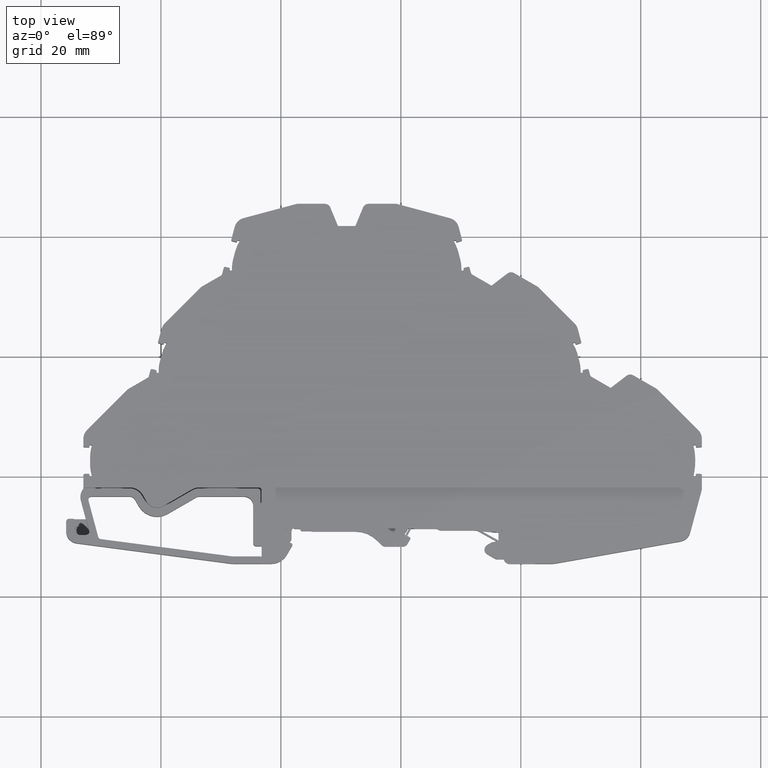
[diagram: clean part render]
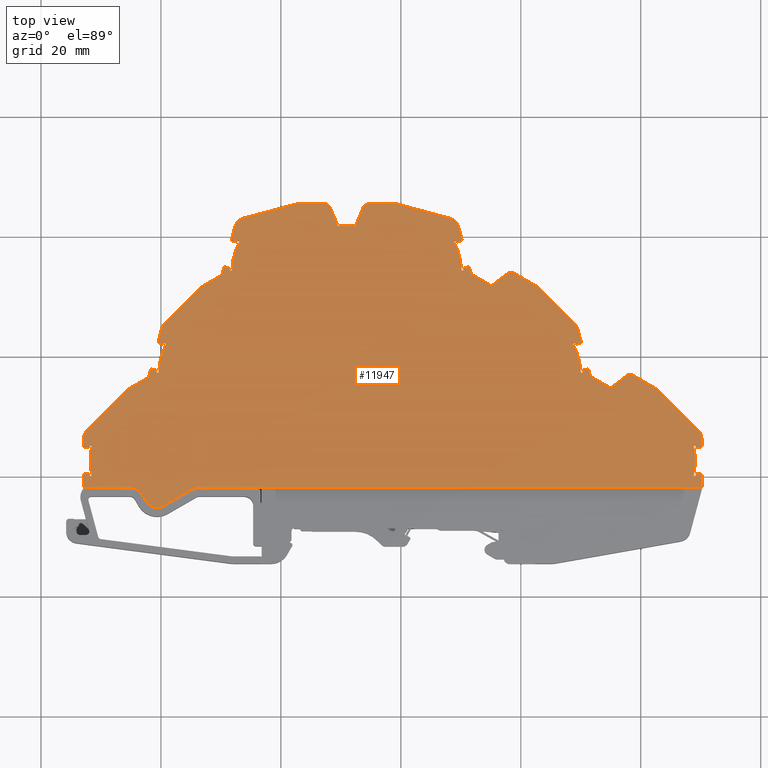
[diagram: same view with one face highlighted and labeled with its STEP entity id]
A machine part, top view. The second image highlights one B-rep face of the part: STEP entity #11947.
In plain terms, the highlighted planar face has unit normal (-0, 0, 1).
Its self-contained STEP definition (entity closure, byte-faithful):
#25 = AXIS2_PLACEMENT_3D ( 'NONE', #24875, #24881, #24869 ) ;
#80 = CIRCLE ( 'NONE', #25, 9.999999999996845200 ) ;
#101 = AXIS2_PLACEMENT_3D ( 'NONE', #24984, #25008, #25010 ) ;
#119 = CIRCLE ( 'NONE', #101, 9.999999999996845200 ) ;
#146 = AXIS2_PLACEMENT_3D ( 'NONE', #25584, #25612, #25571 ) ;
#587 = CIRCLE ( 'NONE', #610, 0.1499999999988732600 ) ;
#603 = CIRCLE ( 'NONE', #643, 0.1500000000000112400 ) ;
#610 = AXIS2_PLACEMENT_3D ( 'NONE', #2754, #2735, #2746 ) ;
#629 = AXIS2_PLACEMENT_3D ( 'NONE', #2711, #2678, #2673 ) ;
#630 = CIRCLE ( 'NONE', #640, 0.1500000000000112400 ) ;
#640 = AXIS2_PLACEMENT_3D ( 'NONE', #2730, #2748, #2733 ) ;
#643 = AXIS2_PLACEMENT_3D ( 'NONE', #2598, #2580, #2599 ) ;
#644 = CIRCLE ( 'NONE', #629, 0.1500000000000112400 ) ;
#679 = CIRCLE ( 'NONE', #696, 0.1499999999999834800 ) ;
#696 = AXIS2_PLACEMENT_3D ( 'NONE', #2858, #2871, #2892 ) ;
#2580 = DIRECTION ( 'NONE',  ( 0.0000000000000000000, -0.0000000000000000000, -1.000000000000000000 ) ) ;
#2598 = CARTESIAN_POINT ( 'NONE',  ( 231.3270619268984900, 54.65116108266849400, 5.854999999999999500 ) ) ;
#2599 = DIRECTION ( 'NONE',  ( 1.000000000000000000, -3.700743415416911500E-013, 0.0000000000000000000 ) ) ;
#2673 = DIRECTION ( 'NONE',  ( 1.000000000000000000, 0.0000000000000000000, 0.0000000000000000000 ) ) ;
#2678 = DIRECTION ( 'NONE',  ( -0.0000000000000000000, 0.0000000000000000000, 1.000000000000000000 ) ) ;
#2711 = CARTESIAN_POINT ( 'NONE',  ( 232.9590612900140100, 59.20467235921619700, 5.854999999999999500 ) ) ;
#2730 = CARTESIAN_POINT ( 'NONE',  ( 219.1139029244109800, 37.60644130541025000, 5.854999999999999500 ) ) ;
#2733 = DIRECTION ( 'NONE',  ( 1.000000000000000000, -4.625929269271139300E-014, 0.0000000000000000000 ) ) ;
#2735 = DIRECTION ( 'NONE',  ( -0.0000000000000000000, 0.0000000000000000000, 1.000000000000000000 ) ) ;
#2746 = DIRECTION ( 'NONE',  ( 1.000000000000000000, 0.0000000000000000000, 0.0000000000000000000 ) ) ;
#2748 = DIRECTION ( 'NONE',  ( 0.0000000000000000000, -0.0000000000000000000, -1.000000000000000000 ) ) ;
#2754 = CARTESIAN_POINT ( 'NONE',  ( 290.2146322378789600, 37.44074603373084600, 5.854999999999999500 ) ) ;
#2858 = CARTESIAN_POINT ( 'NONE',  ( 270.3424170126090200, 54.48569345115900100, 5.854999999999999500 ) ) ;
#2871 = DIRECTION ( 'NONE',  ( -0.0000000000000000000, 0.0000000000000000000, 1.000000000000000000 ) ) ;
#2892 = DIRECTION ( 'NONE',  ( 1.000000000000000000, 0.0000000000000000000, 0.0000000000000000000 ) ) ;
#3061 = EDGE_CURVE ( 'NONE', #7402, #7368, #8962, .T. ) ;
#3262 = EDGE_CURVE ( 'NONE', #7257, #7275, #4342, .T. ) ;
#3385 = EDGE_CURVE ( 'NONE', #7270, #7253, #14745, .T. ) ;
#4342 = CIRCLE ( 'NONE', #4355, 0.1499999999999834800 ) ;
#4355 = AXIS2_PLACEMENT_3D ( 'NONE', #14391, #14401, #14398 ) ;
#5020 = EDGE_CURVE ( 'NONE', #7281, #7520, #14888, .T. ) ;
#5024 = EDGE_CURVE ( 'NONE', #7247, #7342, #14925, .T. ) ;
#6366 = EDGE_LOOP ( 'NONE', ( #13100, #13088, #13099, #13080, #13044, #13073, #13061, #13057, #13078, #13086, #13083, #13067, #13075, #13054, #13094, #13063, #13066, #13051, #13043, #13098, #13074, #13093, #13047, #13079, #13087, #13071, #13147, #13118, #13103, #13131, #13050, #13130, #13091, #13160, #13053, #13055, #13123, #13151, #13045, #13059, #13134, #13077, #13049, #13042, #13041, #13089, #13102, #13072, #13084, #13095, #13058, #13090, #13065, #13115, #13092, #13136, #13096, #13097, #13165, #13040, #13146, #13108, #13117, #13127, #13132, #13128, #13120, #13110, #13121, #13163, #13104, #13119, #13150, #13164, #13143, #13125, #13152, #13135, #13111, #13138, #13126, #13109, #13129, #13161, #13122, #13124, #13148, #13149, #13137, #13154, #13179, #13172, #13155, #13158, #13141, #13166, #13196, #13157, #13133, #13162, #13113, #13184, #13216, #13106, #13222, #13181, #13187, #13173, #13206, #13159, #13180, #13167, #13116, #13139, #13140, #13105, #13112, #13145, #13182, #13107, #13114, #13144, #13156, #13153, #13142, #13195, #13198, #13177, #13176, #13203, #13194, #13178, #13212, #13175, #13214, #13188, #13185, #13204, #13218, #13211, #13200, #13193, #13210, #13174, #13217, #13221, #13215, #13223, #13225, #13213, #13183 ) ) ;
#7247 = VERTEX_POINT ( 'NONE', #17934 ) ;
#7253 = VERTEX_POINT ( 'NONE', #17946 ) ;
#7257 = VERTEX_POINT ( 'NONE', #17971 ) ;
#7270 = VERTEX_POINT ( 'NONE', #18026 ) ;
#7275 = VERTEX_POINT ( 'NONE', #18041 ) ;
#7277 = VERTEX_POINT ( 'NONE', #18018 ) ;
#7281 = VERTEX_POINT ( 'NONE', #18023 ) ;
#7317 = VERTEX_POINT ( 'NONE', #18004 ) ;
#7321 = VERTEX_POINT ( 'NONE', #18020 ) ;
#7330 = VERTEX_POINT ( 'NONE', #18112 ) ;
#7331 = VERTEX_POINT ( 'NONE', #18093 ) ;
#7334 = VERTEX_POINT ( 'NONE', #18096 ) ;
#7342 = VERTEX_POINT ( 'NONE', #18074 ) ;
#7344 = VERTEX_POINT ( 'NONE', #18088 ) ;
#7346 = VERTEX_POINT ( 'NONE', #18121 ) ;
#7351 = VERTEX_POINT ( 'NONE', #18114 ) ;
#7354 = VERTEX_POINT ( 'NONE', #18087 ) ;
#7368 = VERTEX_POINT ( 'NONE', #18116 ) ;
#7402 = VERTEX_POINT ( 'NONE', #18183 ) ;
#7406 = VERTEX_POINT ( 'NONE', #18152 ) ;
#7499 = VERTEX_POINT ( 'NONE', #18232 ) ;
#7503 = VERTEX_POINT ( 'NONE', #18244 ) ;
#7506 = VERTEX_POINT ( 'NONE', #18197 ) ;
#7520 = VERTEX_POINT ( 'NONE', #18278 ) ;
#7535 = VERTEX_POINT ( 'NONE', #18288 ) ;
#7540 = VERTEX_POINT ( 'NONE', #18254 ) ;
#7541 = VERTEX_POINT ( 'NONE', #18275 ) ;
#7542 = VERTEX_POINT ( 'NONE', #18303 ) ;
#7543 = VERTEX_POINT ( 'NONE', #18295 ) ;
#7545 = VERTEX_POINT ( 'NONE', #18312 ) ;
#7551 = VERTEX_POINT ( 'NONE', #18283 ) ;
#7565 = VERTEX_POINT ( 'NONE', #18307 ) ;
#7580 = VERTEX_POINT ( 'NONE', #18271 ) ;
#7582 = VERTEX_POINT ( 'NONE', #18356 ) ;
#7589 = VERTEX_POINT ( 'NONE', #18374 ) ;
#7591 = VERTEX_POINT ( 'NONE', #18332 ) ;
#7661 = VERTEX_POINT ( 'NONE', #18430 ) ;
#7662 = VERTEX_POINT ( 'NONE', #18441 ) ;
#7663 = VERTEX_POINT ( 'NONE', #18437 ) ;
#7676 = VERTEX_POINT ( 'NONE', #18421 ) ;
#7680 = VERTEX_POINT ( 'NONE', #18417 ) ;
#7685 = VERTEX_POINT ( 'NONE', #18389 ) ;
#7705 = VERTEX_POINT ( 'NONE', #18431 ) ;
#7708 = VERTEX_POINT ( 'NONE', #18386 ) ;
#7715 = VERTEX_POINT ( 'NONE', #18485 ) ;
#7716 = VERTEX_POINT ( 'NONE', #18486 ) ;
#7727 = VERTEX_POINT ( 'NONE', #18491 ) ;
#7729 = VERTEX_POINT ( 'NONE', #18482 ) ;
#7730 = VERTEX_POINT ( 'NONE', #18454 ) ;
#7731 = VERTEX_POINT ( 'NONE', #18487 ) ;
#7732 = VERTEX_POINT ( 'NONE', #18499 ) ;
#7734 = VERTEX_POINT ( 'NONE', #18472 ) ;
#7737 = VERTEX_POINT ( 'NONE', #18462 ) ;
#7738 = VERTEX_POINT ( 'NONE', #18467 ) ;
#7739 = VERTEX_POINT ( 'NONE', #18457 ) ;
#7740 = VERTEX_POINT ( 'NONE', #18475 ) ;
#7742 = VERTEX_POINT ( 'NONE', #18493 ) ;
#7744 = VERTEX_POINT ( 'NONE', #18473 ) ;
#7745 = VERTEX_POINT ( 'NONE', #18502 ) ;
#7746 = VERTEX_POINT ( 'NONE', #18494 ) ;
#7749 = VERTEX_POINT ( 'NONE', #18461 ) ;
#7750 = VERTEX_POINT ( 'NONE', #18474 ) ;
#7753 = VERTEX_POINT ( 'NONE', #18504 ) ;
#7754 = VERTEX_POINT ( 'NONE', #18505 ) ;
#7756 = VERTEX_POINT ( 'NONE', #18506 ) ;
#7758 = VERTEX_POINT ( 'NONE', #18481 ) ;
#7759 = VERTEX_POINT ( 'NONE', #18444 ) ;
#7763 = VERTEX_POINT ( 'NONE', #18448 ) ;
#7764 = VERTEX_POINT ( 'NONE', #18449 ) ;
#7766 = VERTEX_POINT ( 'NONE', #18455 ) ;
#7768 = VERTEX_POINT ( 'NONE', #18458 ) ;
#7776 = VERTEX_POINT ( 'NONE', #18516 ) ;
#7777 = VERTEX_POINT ( 'NONE', #18555 ) ;
#7778 = VERTEX_POINT ( 'NONE', #18507 ) ;
#7779 = VERTEX_POINT ( 'NONE', #18511 ) ;
#7780 = VERTEX_POINT ( 'NONE', #18508 ) ;
#7781 = VERTEX_POINT ( 'NONE', #18568 ) ;
#7782 = VERTEX_POINT ( 'NONE', #18567 ) ;
#7783 = VERTEX_POINT ( 'NONE', #18513 ) ;
#7784 = VERTEX_POINT ( 'NONE', #18558 ) ;
#7785 = VERTEX_POINT ( 'NONE', #18526 ) ;
#7786 = VERTEX_POINT ( 'NONE', #18533 ) ;
#7787 = VERTEX_POINT ( 'NONE', #18521 ) ;
#7788 = VERTEX_POINT ( 'NONE', #18519 ) ;
#7789 = VERTEX_POINT ( 'NONE', #18527 ) ;
#7790 = VERTEX_POINT ( 'NONE', #18537 ) ;
#7791 = VERTEX_POINT ( 'NONE', #18509 ) ;
#7792 = VERTEX_POINT ( 'NONE', #18536 ) ;
#7793 = VERTEX_POINT ( 'NONE', #18538 ) ;
#7794 = VERTEX_POINT ( 'NONE', #18534 ) ;
#7795 = VERTEX_POINT ( 'NONE', #18539 ) ;
#7796 = VERTEX_POINT ( 'NONE', #18548 ) ;
#7797 = VERTEX_POINT ( 'NONE', #18543 ) ;
#7798 = VERTEX_POINT ( 'NONE', #18556 ) ;
#7799 = VERTEX_POINT ( 'NONE', #18535 ) ;
#7800 = VERTEX_POINT ( 'NONE', #18540 ) ;
#7801 = VERTEX_POINT ( 'NONE', #18557 ) ;
#7802 = VERTEX_POINT ( 'NONE', #18528 ) ;
#7803 = VERTEX_POINT ( 'NONE', #18541 ) ;
#7804 = VERTEX_POINT ( 'NONE', #18559 ) ;
#7805 = VERTEX_POINT ( 'NONE', #18510 ) ;
#7806 = VERTEX_POINT ( 'NONE', #18546 ) ;
#7807 = VERTEX_POINT ( 'NONE', #18520 ) ;
#7808 = VERTEX_POINT ( 'NONE', #18560 ) ;
#7809 = VERTEX_POINT ( 'NONE', #18561 ) ;
#7810 = VERTEX_POINT ( 'NONE', #18512 ) ;
#7811 = VERTEX_POINT ( 'NONE', #18552 ) ;
#7812 = VERTEX_POINT ( 'NONE', #18565 ) ;
#7813 = VERTEX_POINT ( 'NONE', #18524 ) ;
#7814 = VERTEX_POINT ( 'NONE', #18562 ) ;
#7815 = VERTEX_POINT ( 'NONE', #18550 ) ;
#7816 = VERTEX_POINT ( 'NONE', #18522 ) ;
#7817 = VERTEX_POINT ( 'NONE', #18544 ) ;
#7818 = VERTEX_POINT ( 'NONE', #18542 ) ;
#7819 = VERTEX_POINT ( 'NONE', #18545 ) ;
#7820 = VERTEX_POINT ( 'NONE', #18547 ) ;
#7821 = VERTEX_POINT ( 'NONE', #18514 ) ;
#7822 = VERTEX_POINT ( 'NONE', #18525 ) ;
#7823 = VERTEX_POINT ( 'NONE', #18551 ) ;
#7824 = VERTEX_POINT ( 'NONE', #18517 ) ;
#7825 = VERTEX_POINT ( 'NONE', #18529 ) ;
#7826 = VERTEX_POINT ( 'NONE', #18515 ) ;
#7827 = VERTEX_POINT ( 'NONE', #18553 ) ;
#7828 = VERTEX_POINT ( 'NONE', #18563 ) ;
#7829 = VERTEX_POINT ( 'NONE', #18554 ) ;
#7830 = VERTEX_POINT ( 'NONE', #18564 ) ;
#7831 = VERTEX_POINT ( 'NONE', #18566 ) ;
#7832 = VERTEX_POINT ( 'NONE', #18530 ) ;
#7833 = VERTEX_POINT ( 'NONE', #18569 ) ;
#7834 = VERTEX_POINT ( 'NONE', #18570 ) ;
#7835 = VERTEX_POINT ( 'NONE', #18518 ) ;
#7837 = VERTEX_POINT ( 'NONE', #18531 ) ;
#7839 = VERTEX_POINT ( 'NONE', #18619 ) ;
#7842 = VERTEX_POINT ( 'NONE', #18629 ) ;
#7844 = VERTEX_POINT ( 'NONE', #18625 ) ;
#7846 = VERTEX_POINT ( 'NONE', #18583 ) ;
#7848 = VERTEX_POINT ( 'NONE', #18602 ) ;
#7850 = VERTEX_POINT ( 'NONE', #18608 ) ;
#7852 = VERTEX_POINT ( 'NONE', #18589 ) ;
#7854 = VERTEX_POINT ( 'NONE', #18581 ) ;
#7865 = VERTEX_POINT ( 'NONE', #18604 ) ;
#7868 = VERTEX_POINT ( 'NONE', #18610 ) ;
#7875 = VERTEX_POINT ( 'NONE', #18615 ) ;
#7876 = VERTEX_POINT ( 'NONE', #18590 ) ;
#7878 = VERTEX_POINT ( 'NONE', #18593 ) ;
#7879 = VERTEX_POINT ( 'NONE', #18631 ) ;
#7886 = VERTEX_POINT ( 'NONE', #18621 ) ;
#7889 = VERTEX_POINT ( 'NONE', #18626 ) ;
#7891 = VERTEX_POINT ( 'NONE', #18628 ) ;
#7897 = VERTEX_POINT ( 'NONE', #18579 ) ;
#7899 = VERTEX_POINT ( 'NONE', #18595 ) ;
#8930 = AXIS2_PLACEMENT_3D ( 'NONE', #13849, #13819, #13826 ) ;
#8962 = CIRCLE ( 'NONE', #8930, 0.1500000000000112400 ) ;
#10584 = EDGE_CURVE ( 'NONE', #7541, #7506, #15589, .T. ) ;
#10596 = EDGE_CURVE ( 'NONE', #7520, #7591, #19740, .T. ) ;
#10597 = EDGE_CURVE ( 'NONE', #7540, #7541, #19748, .T. ) ;
#10601 = EDGE_CURVE ( 'NONE', #7591, #7540, #15643, .T. ) ;
#10602 = EDGE_CURVE ( 'NONE', #7543, #7551, #15636, .T. ) ;
#10603 = EDGE_CURVE ( 'NONE', #7506, #7543, #19786, .T. ) ;
#10636 = EDGE_CURVE ( 'NONE', #7545, #7589, #19864, .T. ) ;
#10638 = EDGE_CURVE ( 'NONE', #7565, #7499, #19867, .T. ) ;
#10642 = EDGE_CURVE ( 'NONE', #7503, #7247, #19910, .T. ) ;
#10651 = EDGE_CURVE ( 'NONE', #7542, #7535, #19926, .T. ) ;
#10652 = EDGE_CURVE ( 'NONE', #7499, #7503, #15694, .T. ) ;
#10662 = EDGE_CURVE ( 'NONE', #7580, #7582, #19941, .T. ) ;
#10674 = EDGE_CURVE ( 'NONE', #7589, #7565, #15734, .T. ) ;
#10678 = EDGE_CURVE ( 'NONE', #7542, #7545, #15743, .T. ) ;
#10739 = EDGE_CURVE ( 'NONE', #7582, #7551, #20172, .T. ) ;
#10753 = EDGE_CURVE ( 'NONE', #7729, #7663, #20236, .T. ) ;
#10793 = EDGE_CURVE ( 'NONE', #7744, #7759, #20411, .T. ) ;
#10794 = EDGE_CURVE ( 'NONE', #7732, #7753, #20387, .T. ) ;
#10807 = EDGE_CURVE ( 'NONE', #7730, #7680, #20432, .T. ) ;
#10810 = EDGE_CURVE ( 'NONE', #7781, #7776, #21557, .T. ) ;
#10813 = EDGE_CURVE ( 'NONE', #7742, #7708, #20433, .T. ) ;
#10814 = EDGE_CURVE ( 'NONE', #7535, #7734, #20416, .T. ) ;
#10815 = EDGE_CURVE ( 'NONE', #7738, #7685, #21585, .T. ) ;
#10817 = EDGE_CURVE ( 'NONE', #7731, #7766, #20398, .T. ) ;
#10818 = EDGE_CURVE ( 'NONE', #7334, #7716, #20419, .T. ) ;
#10824 = EDGE_CURVE ( 'NONE', #7763, #7732, #21595, .T. ) ;
#10825 = EDGE_CURVE ( 'NONE', #7708, #7739, #21597, .T. ) ;
#10828 = EDGE_CURVE ( 'NONE', #7739, #7763, #20497, .T. ) ;
#10833 = EDGE_CURVE ( 'NONE', #7754, #7729, #20498, .T. ) ;
#10836 = EDGE_CURVE ( 'NONE', #7753, #7744, #20466, .T. ) ;
#10839 = EDGE_CURVE ( 'NONE', #7663, #7731, #21672, .T. ) ;
#10840 = EDGE_CURVE ( 'NONE', #7759, #7351, #21642, .T. ) ;
#10841 = EDGE_CURVE ( 'NONE', #7745, #7662, #21659, .T. ) ;
#10844 = EDGE_CURVE ( 'NONE', #7766, #7750, #21700, .T. ) ;
#10845 = EDGE_CURVE ( 'NONE', #7685, #7750, #20495, .T. ) ;
#10848 = EDGE_CURVE ( 'NONE', #7831, #7809, #21699, .T. ) ;
#10849 = EDGE_CURVE ( 'NONE', #7715, #7738, #20467, .T. ) ;
#10857 = EDGE_CURVE ( 'NONE', #7716, #7715, #21677, .T. ) ;
#10865 = EDGE_CURVE ( 'NONE', #7734, #7749, #21730, .T. ) ;
#10866 = EDGE_CURVE ( 'NONE', #7749, #7754, #21725, .T. ) ;
#10870 = EDGE_CURVE ( 'NONE', #7768, #7788, #21743, .T. ) ;
#10871 = EDGE_CURVE ( 'NONE', #7779, #7787, #21751, .T. ) ;
#10872 = EDGE_CURVE ( 'NONE', #7727, #7807, #21745, .T. ) ;
#10873 = EDGE_CURVE ( 'NONE', #7787, #7802, #20541, .T. ) ;
#10874 = EDGE_CURVE ( 'NONE', #7832, #7782, #21769, .T. ) ;
#10875 = EDGE_CURVE ( 'NONE', #7806, #7819, #20536, .T. ) ;
#10876 = EDGE_CURVE ( 'NONE', #7824, #7800, #21772, .T. ) ;
#10877 = EDGE_CURVE ( 'NONE', #7344, #7745, #20562, .T. ) ;
#10878 = EDGE_CURVE ( 'NONE', #7810, #7803, #21800, .T. ) ;
#10879 = EDGE_CURVE ( 'NONE', #7823, #7835, #21771, .T. ) ;
#10880 = EDGE_CURVE ( 'NONE', #7793, #7768, #20512, .T. ) ;
#10881 = EDGE_CURVE ( 'NONE', #7782, #7798, #20518, .T. ) ;
#10882 = EDGE_CURVE ( 'NONE', #7321, #7799, #20553, .T. ) ;
#10883 = EDGE_CURVE ( 'NONE', #7406, #7824, #20545, .T. ) ;
#10884 = EDGE_CURVE ( 'NONE', #7746, #7813, #21770, .T. ) ;
#10885 = EDGE_CURVE ( 'NONE', #7778, #7784, #21766, .T. ) ;
#10886 = EDGE_CURVE ( 'NONE', #7805, #7830, #20543, .T. ) ;
#10887 = EDGE_CURVE ( 'NONE', #7788, #7764, #21833, .T. ) ;
#10888 = EDGE_CURVE ( 'NONE', #7789, #7793, #21807, .T. ) ;
#10889 = EDGE_CURVE ( 'NONE', #7758, #7756, #21806, .T. ) ;
#10890 = EDGE_CURVE ( 'NONE', #7661, #7730, #21824, .T. ) ;
#10891 = EDGE_CURVE ( 'NONE', #7777, #7810, #21816, .T. ) ;
#10892 = EDGE_CURVE ( 'NONE', #7776, #7821, #20538, .T. ) ;
#10893 = EDGE_CURVE ( 'NONE', #7783, #7834, #20511, .T. ) ;
#10894 = EDGE_CURVE ( 'NONE', #7826, #7792, #20539, .T. ) ;
#10895 = EDGE_CURVE ( 'NONE', #7253, #7837, #20558, .T. ) ;
#10896 = EDGE_CURVE ( 'NONE', #7834, #7331, #21827, .T. ) ;
#10897 = EDGE_CURVE ( 'NONE', #7804, #7812, #21832, .T. ) ;
#10898 = EDGE_CURVE ( 'NONE', #7807, #7814, #21840, .T. ) ;
#10899 = EDGE_CURVE ( 'NONE', #7822, #7813, #20528, .T. ) ;
#10900 = EDGE_CURVE ( 'NONE', #7676, #7727, #20516, .T. ) ;
#10901 = EDGE_CURVE ( 'NONE', #7784, #7777, #20522, .T. ) ;
#10902 = EDGE_CURVE ( 'NONE', #7821, #7354, #20544, .T. ) ;
#10903 = EDGE_CURVE ( 'NONE', #7786, #7831, #20524, .T. ) ;
#10904 = EDGE_CURVE ( 'NONE', #7705, #7742, #21878, .T. ) ;
#10905 = EDGE_CURVE ( 'NONE', #7789, #7818, #20530, .T. ) ;
#10906 = EDGE_CURVE ( 'NONE', #7814, #7791, #20554, .T. ) ;
#10907 = EDGE_CURVE ( 'NONE', #7756, #7815, #20550, .T. ) ;
#10908 = EDGE_CURVE ( 'NONE', #7833, #7785, #20557, .T. ) ;
#10909 = EDGE_CURVE ( 'NONE', #7830, #7833, #21864, .T. ) ;
#10910 = EDGE_CURVE ( 'NONE', #7816, #7797, #20571, .T. ) ;
#10911 = EDGE_CURVE ( 'NONE', #7803, #7740, #20611, .T. ) ;
#10912 = EDGE_CURVE ( 'NONE', #7797, #7786, #21874, .T. ) ;
#10913 = EDGE_CURVE ( 'NONE', #7680, #7737, #21882, .T. ) ;
#10914 = EDGE_CURVE ( 'NONE', #7799, #7794, #21930, .T. ) ;
#10915 = EDGE_CURVE ( 'NONE', #7764, #7823, #20606, .T. ) ;
#10916 = EDGE_CURVE ( 'NONE', #7809, #7817, #20625, .T. ) ;
#10917 = EDGE_CURVE ( 'NONE', #7806, #7878, #21897, .T. ) ;
#10918 = EDGE_CURVE ( 'NONE', #7828, #7796, #21891, .T. ) ;
#10919 = EDGE_CURVE ( 'NONE', #7794, #7781, #20608, .T. ) ;
#10920 = EDGE_CURVE ( 'NONE', #7808, #7330, #21898, .T. ) ;
#10921 = EDGE_CURVE ( 'NONE', #7835, #7778, #21899, .T. ) ;
#10922 = EDGE_CURVE ( 'NONE', #7822, #7832, #21926, .T. ) ;
#10923 = EDGE_CURVE ( 'NONE', #7662, #7758, #20615, .T. ) ;
#10924 = EDGE_CURVE ( 'NONE', #7737, #7676, #21895, .T. ) ;
#10925 = EDGE_CURVE ( 'NONE', #7812, #7779, #20619, .T. ) ;
#10926 = EDGE_CURVE ( 'NONE', #7746, #7808, #20610, .T. ) ;
#10927 = EDGE_CURVE ( 'NONE', #7817, #7783, #20587, .T. ) ;
#10928 = EDGE_CURVE ( 'NONE', #7791, #7815, #21928, .T. ) ;
#10929 = EDGE_CURVE ( 'NONE', #7829, #7805, #21956, .T. ) ;
#10930 = EDGE_CURVE ( 'NONE', #7661, #7705, #20575, .T. ) ;
#10931 = EDGE_CURVE ( 'NONE', #7800, #7804, #20614, .T. ) ;
#10932 = EDGE_CURVE ( 'NONE', #7818, #7816, #21934, .T. ) ;
#10933 = EDGE_CURVE ( 'NONE', #7740, #7802, #21943, .T. ) ;
#10934 = EDGE_CURVE ( 'NONE', #7798, #7785, #21957, .T. ) ;
#10935 = EDGE_CURVE ( 'NONE', #7790, #7811, #21945, .T. ) ;
#10936 = EDGE_CURVE ( 'NONE', #7825, #7826, #21958, .T. ) ;
#10938 = EDGE_CURVE ( 'NONE', #7846, #7879, #21966, .T. ) ;
#10940 = EDGE_CURVE ( 'NONE', #7875, #7850, #20597, .T. ) ;
#10942 = EDGE_CURVE ( 'NONE', #7878, #7839, #21995, .T. ) ;
#10943 = EDGE_CURVE ( 'NONE', #7897, #7270, #22014, .T. ) ;
#10945 = EDGE_CURVE ( 'NONE', #7801, #7827, #20590, .T. ) ;
#10949 = EDGE_CURVE ( 'NONE', #7848, #7875, #21980, .T. ) ;
#10952 = EDGE_CURVE ( 'NONE', #7844, #7842, #21978, .T. ) ;
#10953 = EDGE_CURVE ( 'NONE', #7886, #7876, #22008, .T. ) ;
#10954 = EDGE_CURVE ( 'NONE', #7876, #7846, #20630, .T. ) ;
#10963 = EDGE_CURVE ( 'NONE', #7811, #7842, #20697, .T. ) ;
#10964 = EDGE_CURVE ( 'NONE', #7796, #7829, #20644, .T. ) ;
#10967 = EDGE_CURVE ( 'NONE', #7865, #7868, #22025, .T. ) ;
#10970 = EDGE_CURVE ( 'NONE', #7850, #7795, #22065, .T. ) ;
#10973 = EDGE_CURVE ( 'NONE', #7854, #7889, #20687, .T. ) ;
#10974 = EDGE_CURVE ( 'NONE', #7275, #7848, #20650, .T. ) ;
#10975 = EDGE_CURVE ( 'NONE', #7827, #7317, #22043, .T. ) ;
#10977 = EDGE_CURVE ( 'NONE', #7886, #7852, #20648, .T. ) ;
#10978 = EDGE_CURVE ( 'NONE', #7580, #7879, #20692, .T. ) ;
#10979 = EDGE_CURVE ( 'NONE', #7854, #7899, #22103, .T. ) ;
#10983 = EDGE_CURVE ( 'NONE', #7868, #7897, #20658, .T. ) ;
#10984 = EDGE_CURVE ( 'NONE', #7792, #7402, #20639, .T. ) ;
#10985 = EDGE_CURVE ( 'NONE', #7801, #7819, #22100, .T. ) ;
#10986 = EDGE_CURVE ( 'NONE', #7795, #7790, #20679, .T. ) ;
#10987 = EDGE_CURVE ( 'NONE', #7889, #7891, #22143, .T. ) ;
#10988 = EDGE_CURVE ( 'NONE', #7820, #7825, #20680, .T. ) ;
#10989 = EDGE_CURVE ( 'NONE', #7899, #7852, #22119, .T. ) ;
#10991 = EDGE_CURVE ( 'NONE', #7780, #7820, #22127, .T. ) ;
#10993 = EDGE_CURVE ( 'NONE', #7837, #7257, #20638, .T. ) ;
#10994 = EDGE_CURVE ( 'NONE', #7891, #7865, #20663, .T. ) ;
#10995 = EDGE_CURVE ( 'NONE', #7346, #7780, #20659, .T. ) ;
#10996 = EDGE_CURVE ( 'NONE', #7368, #7828, #20662, .T. ) ;
#10997 = EDGE_CURVE ( 'NONE', #7839, #7844, #20664, .T. ) ;
#11783 = EDGE_CURVE ( 'NONE', #7277, #7281, #80, .T. ) ;
#11827 = EDGE_CURVE ( 'NONE', #7342, #7277, #119, .T. ) ;
#11947 = ADVANCED_FACE ( 'NONE', ( #25567 ), #25578, .T. ) ;
#12345 = EDGE_CURVE ( 'NONE', #7330, #7321, #603, .T. ) ;
#12359 = EDGE_CURVE ( 'NONE', #7354, #7406, #644, .T. ) ;
#12376 = EDGE_CURVE ( 'NONE', #7317, #7346, #630, .T. ) ;
#12377 = EDGE_CURVE ( 'NONE', #7351, #7334, #587, .T. ) ;
#12407 = EDGE_CURVE ( 'NONE', #7331, #7344, #679, .T. ) ;
#13040 = ORIENTED_EDGE ( 'NONE', *, *, #10891, .T. ) ;
#13041 = ORIENTED_EDGE ( 'NONE', *, *, #10848, .F. ) ;
#13042 = ORIENTED_EDGE ( 'NONE', *, *, #10916, .F. ) ;
#13043 = ORIENTED_EDGE ( 'NONE', *, *, #10794, .F. ) ;
#13044 = ORIENTED_EDGE ( 'NONE', *, *, #10833, .T. ) ;
#13045 = ORIENTED_EDGE ( 'NONE', *, *, #10877, .F. ) ;
#13047 = ORIENTED_EDGE ( 'NONE', *, *, #10813, .F. ) ;
#13049 = ORIENTED_EDGE ( 'NONE', *, *, #10927, .F. ) ;
#13050 = ORIENTED_EDGE ( 'NONE', *, *, #10872, .T. ) ;
#13051 = ORIENTED_EDGE ( 'NONE', *, *, #10836, .F. ) ;
#13053 = ORIENTED_EDGE ( 'NONE', *, *, #10907, .F. ) ;
#13054 = ORIENTED_EDGE ( 'NONE', *, *, #10818, .F. ) ;
#13055 = ORIENTED_EDGE ( 'NONE', *, *, #10889, .F. ) ;
#13057 = ORIENTED_EDGE ( 'NONE', *, *, #10817, .T. ) ;
#13058 = ORIENTED_EDGE ( 'NONE', *, *, #10888, .T. ) ;
#13059 = ORIENTED_EDGE ( 'NONE', *, *, #12407, .F. ) ;
#13061 = ORIENTED_EDGE ( 'NONE', *, *, #10839, .T. ) ;
#13063 = ORIENTED_EDGE ( 'NONE', *, *, #10840, .F. ) ;
#13065 = ORIENTED_EDGE ( 'NONE', *, *, #10870, .T. ) ;
#13066 = ORIENTED_EDGE ( 'NONE', *, *, #10793, .F. ) ;
#13067 = ORIENTED_EDGE ( 'NONE', *, *, #10849, .F. ) ;
#13071 = ORIENTED_EDGE ( 'NONE', *, *, #10890, .T. ) ;
#13072 = ORIENTED_EDGE ( 'NONE', *, *, #10910, .F. ) ;
#13073 = ORIENTED_EDGE ( 'NONE', *, *, #10753, .T. ) ;
#13074 = ORIENTED_EDGE ( 'NONE', *, *, #10828, .F. ) ;
#13075 = ORIENTED_EDGE ( 'NONE', *, *, #10857, .F. ) ;
#13077 = ORIENTED_EDGE ( 'NONE', *, *, #10893, .F. ) ;
#13078 = ORIENTED_EDGE ( 'NONE', *, *, #10844, .T. ) ;
#13079 = ORIENTED_EDGE ( 'NONE', *, *, #10904, .F. ) ;
#13080 = ORIENTED_EDGE ( 'NONE', *, *, #10866, .T. ) ;
#13083 = ORIENTED_EDGE ( 'NONE', *, *, #10815, .F. ) ;
#13084 = ORIENTED_EDGE ( 'NONE', *, *, #10932, .F. ) ;
#13086 = ORIENTED_EDGE ( 'NONE', *, *, #10845, .F. ) ;
#13087 = ORIENTED_EDGE ( 'NONE', *, *, #10930, .F. ) ;
#13088 = ORIENTED_EDGE ( 'NONE', *, *, #10814, .T. ) ;
#13089 = ORIENTED_EDGE ( 'NONE', *, *, #10903, .F. ) ;
#13090 = ORIENTED_EDGE ( 'NONE', *, *, #10880, .T. ) ;
#13091 = ORIENTED_EDGE ( 'NONE', *, *, #10906, .T. ) ;
#13092 = ORIENTED_EDGE ( 'NONE', *, *, #10915, .T. ) ;
#13093 = ORIENTED_EDGE ( 'NONE', *, *, #10825, .F. ) ;
#13094 = ORIENTED_EDGE ( 'NONE', *, *, #12377, .F. ) ;
#13095 = ORIENTED_EDGE ( 'NONE', *, *, #10905, .F. ) ;
#13096 = ORIENTED_EDGE ( 'NONE', *, *, #10921, .T. ) ;
#13097 = ORIENTED_EDGE ( 'NONE', *, *, #10885, .T. ) ;
#13098 = ORIENTED_EDGE ( 'NONE', *, *, #10824, .F. ) ;
#13099 = ORIENTED_EDGE ( 'NONE', *, *, #10865, .T. ) ;
#13100 = ORIENTED_EDGE ( 'NONE', *, *, #10651, .T. ) ;
#13102 = ORIENTED_EDGE ( 'NONE', *, *, #10912, .F. ) ;
#13103 = ORIENTED_EDGE ( 'NONE', *, *, #10924, .T. ) ;
#13104 = ORIENTED_EDGE ( 'NONE', *, *, #12359, .F. ) ;
#13105 = ORIENTED_EDGE ( 'NONE', *, *, #10974, .F. ) ;
#13106 = ORIENTED_EDGE ( 'NONE', *, *, #10985, .T. ) ;
#13107 = ORIENTED_EDGE ( 'NONE', *, *, #3385, .F. ) ;
#13108 = ORIENTED_EDGE ( 'NONE', *, *, #10911, .T. ) ;
#13109 = ORIENTED_EDGE ( 'NONE', *, *, #10899, .F. ) ;
#13110 = ORIENTED_EDGE ( 'NONE', *, *, #10931, .F. ) ;
#13111 = ORIENTED_EDGE ( 'NONE', *, *, #10920, .F. ) ;
#13112 = ORIENTED_EDGE ( 'NONE', *, *, #3262, .F. ) ;
#13113 = ORIENTED_EDGE ( 'NONE', *, *, #12376, .F. ) ;
#13114 = ORIENTED_EDGE ( 'NONE', *, *, #10943, .F. ) ;
#13115 = ORIENTED_EDGE ( 'NONE', *, *, #10887, .T. ) ;
#13116 = ORIENTED_EDGE ( 'NONE', *, *, #10970, .F. ) ;
#13117 = ORIENTED_EDGE ( 'NONE', *, *, #10933, .T. ) ;
#13118 = ORIENTED_EDGE ( 'NONE', *, *, #10913, .T. ) ;
#13119 = ORIENTED_EDGE ( 'NONE', *, *, #10902, .F. ) ;
#13120 = ORIENTED_EDGE ( 'NONE', *, *, #10897, .F. ) ;
#13121 = ORIENTED_EDGE ( 'NONE', *, *, #10876, .F. ) ;
#13122 = ORIENTED_EDGE ( 'NONE', *, *, #10881, .T. ) ;
#13123 = ORIENTED_EDGE ( 'NONE', *, *, #10923, .F. ) ;
#13124 = ORIENTED_EDGE ( 'NONE', *, *, #10934, .T. ) ;
#13125 = ORIENTED_EDGE ( 'NONE', *, *, #10914, .F. ) ;
#13126 = ORIENTED_EDGE ( 'NONE', *, *, #10884, .T. ) ;
#13127 = ORIENTED_EDGE ( 'NONE', *, *, #10873, .F. ) ;
#13128 = ORIENTED_EDGE ( 'NONE', *, *, #10925, .F. ) ;
#13129 = ORIENTED_EDGE ( 'NONE', *, *, #10922, .T. ) ;
#13130 = ORIENTED_EDGE ( 'NONE', *, *, #10898, .T. ) ;
#13131 = ORIENTED_EDGE ( 'NONE', *, *, #10900, .T. ) ;
#13132 = ORIENTED_EDGE ( 'NONE', *, *, #10871, .F. ) ;
#13133 = ORIENTED_EDGE ( 'NONE', *, *, #10991, .F. ) ;
#13134 = ORIENTED_EDGE ( 'NONE', *, *, #10896, .F. ) ;
#13135 = ORIENTED_EDGE ( 'NONE', *, *, #12345, .F. ) ;
#13136 = ORIENTED_EDGE ( 'NONE', *, *, #10879, .T. ) ;
#13137 = ORIENTED_EDGE ( 'NONE', *, *, #10886, .F. ) ;
#13138 = ORIENTED_EDGE ( 'NONE', *, *, #10926, .F. ) ;
#13139 = ORIENTED_EDGE ( 'NONE', *, *, #10940, .F. ) ;
#13140 = ORIENTED_EDGE ( 'NONE', *, *, #10949, .F. ) ;
#13141 = ORIENTED_EDGE ( 'NONE', *, *, #10984, .F. ) ;
#13142 = ORIENTED_EDGE ( 'NONE', *, *, #10987, .F. ) ;
#13143 = ORIENTED_EDGE ( 'NONE', *, *, #10919, .F. ) ;
#13144 = ORIENTED_EDGE ( 'NONE', *, *, #10983, .F. ) ;
#13145 = ORIENTED_EDGE ( 'NONE', *, *, #10993, .F. ) ;
#13146 = ORIENTED_EDGE ( 'NONE', *, *, #10878, .T. ) ;
#13147 = ORIENTED_EDGE ( 'NONE', *, *, #10807, .T. ) ;
#13148 = ORIENTED_EDGE ( 'NONE', *, *, #10908, .F. ) ;
#13149 = ORIENTED_EDGE ( 'NONE', *, *, #10909, .F. ) ;
#13150 = ORIENTED_EDGE ( 'NONE', *, *, #10892, .F. ) ;
#13151 = ORIENTED_EDGE ( 'NONE', *, *, #10841, .F. ) ;
#13152 = ORIENTED_EDGE ( 'NONE', *, *, #10882, .F. ) ;
#13153 = ORIENTED_EDGE ( 'NONE', *, *, #10994, .F. ) ;
#13154 = ORIENTED_EDGE ( 'NONE', *, *, #10929, .F. ) ;
#13155 = ORIENTED_EDGE ( 'NONE', *, *, #10996, .F. ) ;
#13156 = ORIENTED_EDGE ( 'NONE', *, *, #10967, .F. ) ;
#13157 = ORIENTED_EDGE ( 'NONE', *, *, #10988, .F. ) ;
#13158 = ORIENTED_EDGE ( 'NONE', *, *, #3061, .F. ) ;
#13159 = ORIENTED_EDGE ( 'NONE', *, *, #10963, .F. ) ;
#13160 = ORIENTED_EDGE ( 'NONE', *, *, #10928, .T. ) ;
#13161 = ORIENTED_EDGE ( 'NONE', *, *, #10874, .T. ) ;
#13162 = ORIENTED_EDGE ( 'NONE', *, *, #10995, .F. ) ;
#13163 = ORIENTED_EDGE ( 'NONE', *, *, #10883, .F. ) ;
#13164 = ORIENTED_EDGE ( 'NONE', *, *, #10810, .F. ) ;
#13165 = ORIENTED_EDGE ( 'NONE', *, *, #10901, .T. ) ;
#13166 = ORIENTED_EDGE ( 'NONE', *, *, #10894, .F. ) ;
#13167 = ORIENTED_EDGE ( 'NONE', *, *, #10986, .F. ) ;
#13172 = ORIENTED_EDGE ( 'NONE', *, *, #10918, .F. ) ;
#13173 = ORIENTED_EDGE ( 'NONE', *, *, #10997, .T. ) ;
#13174 = ORIENTED_EDGE ( 'NONE', *, *, #11827, .F. ) ;
#13175 = ORIENTED_EDGE ( 'NONE', *, *, #10662, .T. ) ;
#13176 = ORIENTED_EDGE ( 'NONE', *, *, #10977, .F. ) ;
#13177 = ORIENTED_EDGE ( 'NONE', *, *, #10989, .T. ) ;
#13178 = ORIENTED_EDGE ( 'NONE', *, *, #10938, .T. ) ;
#13179 = ORIENTED_EDGE ( 'NONE', *, *, #10964, .F. ) ;
#13180 = ORIENTED_EDGE ( 'NONE', *, *, #10935, .F. ) ;
#13181 = ORIENTED_EDGE ( 'NONE', *, *, #10917, .T. ) ;
#13182 = ORIENTED_EDGE ( 'NONE', *, *, #10895, .F. ) ;
#13183 = ORIENTED_EDGE ( 'NONE', *, *, #10678, .F. ) ;
#13184 = ORIENTED_EDGE ( 'NONE', *, *, #10975, .F. ) ;
#13185 = ORIENTED_EDGE ( 'NONE', *, *, #10603, .F. ) ;
#13187 = ORIENTED_EDGE ( 'NONE', *, *, #10942, .T. ) ;
#13188 = ORIENTED_EDGE ( 'NONE', *, *, #10602, .F. ) ;
#13193 = ORIENTED_EDGE ( 'NONE', *, *, #5020, .F. ) ;
#13194 = ORIENTED_EDGE ( 'NONE', *, *, #10954, .T. ) ;
#13195 = ORIENTED_EDGE ( 'NONE', *, *, #10973, .F. ) ;
#13196 = ORIENTED_EDGE ( 'NONE', *, *, #10936, .F. ) ;
#13198 = ORIENTED_EDGE ( 'NONE', *, *, #10979, .T. ) ;
#13200 = ORIENTED_EDGE ( 'NONE', *, *, #10596, .F. ) ;
#13203 = ORIENTED_EDGE ( 'NONE', *, *, #10953, .T. ) ;
#13204 = ORIENTED_EDGE ( 'NONE', *, *, #10584, .F. ) ;
#13206 = ORIENTED_EDGE ( 'NONE', *, *, #10952, .T. ) ;
#13210 = ORIENTED_EDGE ( 'NONE', *, *, #11783, .F. ) ;
#13211 = ORIENTED_EDGE ( 'NONE', *, *, #10601, .F. ) ;
#13212 = ORIENTED_EDGE ( 'NONE', *, *, #10978, .F. ) ;
#13213 = ORIENTED_EDGE ( 'NONE', *, *, #10636, .F. ) ;
#13214 = ORIENTED_EDGE ( 'NONE', *, *, #10739, .T. ) ;
#13215 = ORIENTED_EDGE ( 'NONE', *, *, #10652, .F. ) ;
#13216 = ORIENTED_EDGE ( 'NONE', *, *, #10945, .F. ) ;
#13217 = ORIENTED_EDGE ( 'NONE', *, *, #5024, .F. ) ;
#13218 = ORIENTED_EDGE ( 'NONE', *, *, #10597, .F. ) ;
#13221 = ORIENTED_EDGE ( 'NONE', *, *, #10642, .F. ) ;
#13222 = ORIENTED_EDGE ( 'NONE', *, *, #10875, .F. ) ;
#13223 = ORIENTED_EDGE ( 'NONE', *, *, #10638, .F. ) ;
#13225 = ORIENTED_EDGE ( 'NONE', *, *, #10674, .F. ) ;
#13819 = DIRECTION ( 'NONE',  ( -0.0000000000000000000, 0.0000000000000000000, 1.000000000000000000 ) ) ;
#13826 = DIRECTION ( 'NONE',  ( 1.000000000000000000, 0.0000000000000000000, 0.0000000000000000000 ) ) ;
#13849 = CARTESIAN_POINT ( 'NONE',  ( 220.7452916355200000, 42.16011897645745400, 5.854999999999999500 ) ) ;
#14391 = CARTESIAN_POINT ( 'NONE',  ( 208.3208700146580000, 25.11906951068310100, 5.854999999999999500 ) ) ;
#14398 = DIRECTION ( 'NONE',  ( 1.000000000000000000, 0.0000000000000000000, 0.0000000000000000000 ) ) ;
#14401 = DIRECTION ( 'NONE',  ( -0.0000000000000000000, 0.0000000000000000000, 1.000000000000000000 ) ) ;
#14745 = CIRCLE ( 'NONE', #14753, 0.1500000000000112400 ) ;
#14753 = AXIS2_PLACEMENT_3D ( 'NONE', #15991, #15969, #15981 ) ;
#14865 = AXIS2_PLACEMENT_3D ( 'NONE', #16355, #16356, #16346 ) ;
#14888 = CIRCLE ( 'NONE', #14917, 0.1499999999999834800 ) ;
#14917 = AXIS2_PLACEMENT_3D ( 'NONE', #16361, #16353, #16336 ) ;
#14925 = CIRCLE ( 'NONE', #14865, 0.1499999999999834800 ) ;
#15589 = CIRCLE ( 'NONE', #15605, 0.1499999999999834800 ) ;
#15605 = AXIS2_PLACEMENT_3D ( 'NONE', #19728, #19732, #19752 ) ;
#15636 = CIRCLE ( 'NONE', #15644, 0.1999999999999779700 ) ;
#15637 = VECTOR ( 'NONE', #19848, 999.9999999999998900 ) ;
#15643 = CIRCLE ( 'NONE', #15660, 0.1499999999999834800 ) ;
#15644 = AXIS2_PLACEMENT_3D ( 'NONE', #19758, #19756, #19765 ) ;
#15659 = VECTOR ( 'NONE', #19747, 1000.000000000000000 ) ;
#15660 = AXIS2_PLACEMENT_3D ( 'NONE', #19777, #19800, #19778 ) ;
#15662 = VECTOR ( 'NONE', #19760, 1000.000000000000200 ) ;
#15680 = VECTOR ( 'NONE', #19793, 1000.000000000000000 ) ;
#15694 = CIRCLE ( 'NONE', #15753, 0.1499999999999834800 ) ;
#15710 = VECTOR ( 'NONE', #19871, 1000.000000000000000 ) ;
#15714 = VECTOR ( 'NONE', #19925, 1000.000000000000100 ) ;
#15717 = AXIS2_PLACEMENT_3D ( 'NONE', #20011, #19980, #20017 ) ;
#15721 = VECTOR ( 'NONE', #19929, 1000.000000000000000 ) ;
#15731 = VECTOR ( 'NONE', #19947, 1000.000000000000000 ) ;
#15734 = CIRCLE ( 'NONE', #15717, 0.1499999999999834800 ) ;
#15743 = CIRCLE ( 'NONE', #15746, 0.1999999999999779700 ) ;
#15746 = AXIS2_PLACEMENT_3D ( 'NONE', #19983, #19984, #20013 ) ;
#15753 = AXIS2_PLACEMENT_3D ( 'NONE', #19922, #19933, #19890 ) ;
#15829 = VECTOR ( 'NONE', #20206, 1000.000000000000200 ) ;
#15856 = VECTOR ( 'NONE', #20184, 1000.000000000000000 ) ;
#15969 = DIRECTION ( 'NONE',  ( -0.0000000000000000000, 0.0000000000000000000, 1.000000000000000000 ) ) ;
#15981 = DIRECTION ( 'NONE',  ( 1.000000000000000000, 0.0000000000000000000, 0.0000000000000000000 ) ) ;
#15991 = CARTESIAN_POINT ( 'NONE',  ( 208.3212543090104700, 20.20740993054879900, 5.854999999999999500 ) ) ;
#16336 = DIRECTION ( 'NONE',  ( 1.000000000000000000, 0.0000000000000000000, 0.0000000000000000000 ) ) ;
#16346 = DIRECTION ( 'NONE',  ( 1.000000000000000000, 0.0000000000000000000, 0.0000000000000000000 ) ) ;
#16353 = DIRECTION ( 'NONE',  ( -0.0000000000000000000, 0.0000000000000000000, 1.000000000000000000 ) ) ;
#16355 = CARTESIAN_POINT ( 'NONE',  ( 308.9342038488494500, 25.11925285613399700, 5.854999999999999500 ) ) ;
#16356 = DIRECTION ( 'NONE',  ( -0.0000000000000000000, 0.0000000000000000000, 1.000000000000000000 ) ) ;
#16361 = CARTESIAN_POINT ( 'NONE',  ( 308.9338766030690000, 20.20745540164425300, 5.854999999999999500 ) ) ;
#17934 = CARTESIAN_POINT ( 'NONE',  ( 308.9341906167130100, 25.26925285555034900, 5.854999999999999500 ) ) ;
#17946 = CARTESIAN_POINT ( 'NONE',  ( 208.4712543090104800, 20.20740993054879900, 5.854999999999999500 ) ) ;
#17971 = CARTESIAN_POINT ( 'NONE',  ( 208.4664160241735000, 25.08278784707695100, 5.854999999999999500 ) ) ;
#18004 = CARTESIAN_POINT ( 'NONE',  ( 219.1463539454025000, 37.75288901360880100, 5.854999999999999500 ) ) ;
#18018 = CARTESIAN_POINT ( 'NONE',  ( 309.0856362443883500, 22.66401027334065100, 5.854999999999999500 ) ) ;
#18020 = CARTESIAN_POINT ( 'NONE',  ( 231.4770619268985000, 54.65116108266849400, 5.854999999999999500 ) ) ;
#18023 = CARTESIAN_POINT ( 'NONE',  ( 308.7883361051575000, 20.24375916822110000, 5.854999999999999500 ) ) ;
#18026 = CARTESIAN_POINT ( 'NONE',  ( 208.3212501905939900, 20.05740993060534900, 5.854999999999999500 ) ) ;
#18041 = CARTESIAN_POINT ( 'NONE',  ( 208.4708700146579800, 25.11906951068310100, 5.854999999999999500 ) ) ;
#18074 = CARTESIAN_POINT ( 'NONE',  ( 308.7886585147935000, 25.08296848298925100, 5.854999999999999500 ) ) ;
#18087 = CARTESIAN_POINT ( 'NONE',  ( 233.0902631276835000, 59.13196694131500000, 5.854999999999999500 ) ) ;
#18088 = CARTESIAN_POINT ( 'NONE',  ( 270.4924170126090000, 54.48569345115900100, 5.854999999999999500 ) ) ;
#18093 = CARTESIAN_POINT ( 'NONE',  ( 270.3812438474449800, 54.34080564319489800, 5.854999999999999500 ) ) ;
#18096 = CARTESIAN_POINT ( 'NONE',  ( 290.3646322378778600, 37.44074603373084600, 5.854999999999999500 ) ) ;
#18112 = CARTESIAN_POINT ( 'NONE',  ( 231.3595129478899800, 54.79760879086700200, 5.854999999999999500 ) ) ;
#18114 = CARTESIAN_POINT ( 'NONE',  ( 290.2534458208995100, 37.29585467521439300, 5.854999999999999500 ) ) ;
#18116 = CARTESIAN_POINT ( 'NONE',  ( 220.8952916355200100, 42.16011897645745400, 5.854999999999999500 ) ) ;
#18121 = CARTESIAN_POINT ( 'NONE',  ( 219.2639029244110100, 37.60644130541025000, 5.854999999999999500 ) ) ;
#18152 = CARTESIAN_POINT ( 'NONE',  ( 233.1090612900140100, 59.20467235921619700, 5.854999999999999500 ) ) ;
#18183 = CARTESIAN_POINT ( 'NONE',  ( 220.8765072414100000, 42.08743840979150300, 5.854999999999999500 ) ) ;
#18197 = CARTESIAN_POINT ( 'NONE',  ( 309.3390309233849400, 20.44825785460064800, 5.854999999999999500 ) ) ;
#18232 = CARTESIAN_POINT ( 'NONE',  ( 309.1824226765299400, 25.11930958845334800, 5.854999999999999500 ) ) ;
#18244 = CARTESIAN_POINT ( 'NONE',  ( 309.0324094520955200, 25.26926151985050200, 5.854999999999999500 ) ) ;
#18254 = CARTESIAN_POINT ( 'NONE',  ( 309.1824371565230100, 20.20738742156699900, 5.854999999999999500 ) ) ;
#18271 = CARTESIAN_POINT ( 'NONE',  ( 226.3782401042720100, 18.15365339502478600, 5.854999999999998600 ) ) ;
#18275 = CARTESIAN_POINT ( 'NONE',  ( 309.1824849478304600, 20.29847945350455200, 5.854999999999999500 ) ) ;
#18278 = CARTESIAN_POINT ( 'NONE',  ( 308.9338929136519600, 20.05745540253104800, 5.854999999999999500 ) ) ;
#18283 = CARTESIAN_POINT ( 'NONE',  ( 310.1925644423635000, 20.21951975475525000, 5.854999999999999500 ) ) ;
#18288 = CARTESIAN_POINT ( 'NONE',  ( 310.1925644423635000, 26.27847822811689600, 5.854999999999998600 ) ) ;
#18295 = CARTESIAN_POINT ( 'NONE',  ( 310.0012924372949800, 20.41932921925700100, 5.854999999999999500 ) ) ;
#18303 = CARTESIAN_POINT ( 'NONE',  ( 310.1925644423635000, 25.10719985441475200, 5.854999999999999500 ) ) ;
#18307 = CARTESIAN_POINT ( 'NONE',  ( 309.1824518567389600, 25.02825047770279800, 5.854999999999999500 ) ) ;
#18312 = CARTESIAN_POINT ( 'NONE',  ( 310.0012981170650100, 24.90739063809530100, 5.854999999999999500 ) ) ;
#18332 = CARTESIAN_POINT ( 'NONE',  ( 309.0324534877505000, 20.05746611973405200, 5.854999999999999500 ) ) ;
#18356 = CARTESIAN_POINT ( 'NONE',  ( 310.1925644423634500, 18.15365339502484700, 5.854999999999998600 ) ) ;
#18374 = CARTESIAN_POINT ( 'NONE',  ( 309.3390021050635100, 24.87844163348244900, 5.854999999999999500 ) ) ;
#18386 = CARTESIAN_POINT ( 'NONE',  ( 289.1124835015555200, 42.13619713075029700, 5.854999999999999500 ) ) ;
#18389 = CARTESIAN_POINT ( 'NONE',  ( 291.0963228419145100, 37.89612981797304100, 5.854999999999999500 ) ) ;
#18417 = CARTESIAN_POINT ( 'NONE',  ( 289.0190012501924500, 45.45106309100026500, 5.854999999999998600 ) ) ;
#18421 = CARTESIAN_POINT ( 'NONE',  ( 278.8718772566345500, 53.90563771605776100, 5.854999999999998600 ) ) ;
#18430 = CARTESIAN_POINT ( 'NONE',  ( 290.0676600850810000, 42.47386823462719700, 5.854999999999999500 ) ) ;
#18431 = CARTESIAN_POINT ( 'NONE',  ( 289.9346258933250100, 42.23136226421344500, 5.854999999999999500 ) ) ;
#18437 = CARTESIAN_POINT ( 'NONE',  ( 294.9888899866554700, 34.75714158851829400, 5.854999999999999500 ) ) ;
#18441 = CARTESIAN_POINT ( 'NONE',  ( 270.4637845539104400, 54.61235794880190000, 5.854999999999999500 ) ) ;
#18444 = CARTESIAN_POINT ( 'NONE',  ( 290.1588443691595100, 37.27051278223635200, 5.854999999999999500 ) ) ;
#18448 = CARTESIAN_POINT ( 'NONE',  ( 288.9051754200840500, 42.33016208888680200, 5.854999999999999500 ) ) ;
#18449 = CARTESIAN_POINT ( 'NONE',  ( 254.6185329136205300, 65.45375394750023200, 5.854999999999998600 ) ) ;
#18454 = CARTESIAN_POINT ( 'NONE',  ( 289.5000802471260500, 44.59202957575774900, 5.854999999999998600 ) ) ;
#18455 = CARTESIAN_POINT ( 'NONE',  ( 291.5596239588205100, 36.90598158962860300, 5.854999999999999500 ) ) ;
#18457 = CARTESIAN_POINT ( 'NONE',  ( 289.0888874835459900, 42.22414592514920200, 5.854999999999999500 ) ) ;
#18458 = CARTESIAN_POINT ( 'NONE',  ( 268.3193315097764800, 63.01928092070638600, 5.854999999999998600 ) ) ;
#18461 = CARTESIAN_POINT ( 'NONE',  ( 302.7445101494070100, 34.55151556231999200, 5.854999999999998600 ) ) ;
#18462 = CARTESIAN_POINT ( 'NONE',  ( 282.8767773520450500, 51.59328698914760700, 5.854999999999998600 ) ) ;
#18467 = CARTESIAN_POINT ( 'NONE',  ( 290.4485114501165400, 37.75264489443790000, 5.854999999999999500 ) ) ;
#18472 = CARTESIAN_POINT ( 'NONE',  ( 309.6064229741817300, 27.69304673193870400, 5.854999999999998600 ) ) ;
#18473 = CARTESIAN_POINT ( 'NONE',  ( 289.9700531298104800, 37.41281520227950400, 5.854999999999999500 ) ) ;
#18474 = CARTESIAN_POINT ( 'NONE',  ( 291.3327577149035500, 37.75262777988744700, 5.854999999999999500 ) ) ;
#18475 = CARTESIAN_POINT ( 'NONE',  ( 232.3085147664749900, 61.63674935301580100, 5.854999999999998600 ) ) ;
#18481 = CARTESIAN_POINT ( 'NONE',  ( 270.5762289046779800, 54.79760425546390200, 5.854999999999999500 ) ) ;
#18482 = CARTESIAN_POINT ( 'NONE',  ( 297.6359395394995300, 36.78826278688400500, 5.854999999999998600 ) ) ;
#18485 = CARTESIAN_POINT ( 'NONE',  ( 290.3360331632250100, 37.56747241571760300, 5.854999999999999500 ) ) ;
#18486 = CARTESIAN_POINT ( 'NONE',  ( 290.3595481513020200, 37.47946783684905400, 5.854999999999999500 ) ) ;
#18487 = CARTESIAN_POINT ( 'NONE',  ( 291.7926005549240400, 36.60237414631590300, 5.854999999999999500 ) ) ;
#18491 = CARTESIAN_POINT ( 'NONE',  ( 277.7631021886594500, 53.83298148272308500, 5.854999999999998600 ) ) ;
#18493 = CARTESIAN_POINT ( 'NONE',  ( 289.3024728115329900, 42.03201108489309900, 5.854999999999999500 ) ) ;
#18494 = CARTESIAN_POINT ( 'NONE',  ( 230.4758827860829900, 54.79751731233130100, 5.854999999999999500 ) ) ;
#18499 = CARTESIAN_POINT ( 'NONE',  ( 288.8106980857114600, 42.30483803060899800, 5.854999999999999500 ) ) ;
#18502 = CARTESIAN_POINT ( 'NONE',  ( 270.4873123843684700, 54.52449204962240300, 5.854999999999999500 ) ) ;
#18504 = CARTESIAN_POINT ( 'NONE',  ( 288.7183318859184700, 42.08724716405720300, 5.854999999999999500 ) ) ;
#18505 = CARTESIAN_POINT ( 'NONE',  ( 298.7447146074745200, 36.86091902021868800, 5.854999999999998600 ) ) ;
#18506 = CARTESIAN_POINT ( 'NONE',  ( 271.2234268019680000, 54.94101539387610000, 5.854999999999999500 ) ) ;
#18507 = CARTESIAN_POINT ( 'NONE',  ( 249.5178193620635100, 61.75373601842309800, 5.854999999999999500 ) ) ;
#18508 = CARTESIAN_POINT ( 'NONE',  ( 219.2588152956760200, 37.56770624823370500, 5.854999999999999500 ) ) ;
#18509 = CARTESIAN_POINT ( 'NONE',  ( 271.6867924606909800, 53.95069690667099100, 5.854999999999999500 ) ) ;
#18510 = CARTESIAN_POINT ( 'NONE',  ( 220.4829525095585200, 42.13619713075020500, 5.854999999999999500 ) ) ;
#18511 = CARTESIAN_POINT ( 'NONE',  ( 232.5061222020685000, 59.07673086215120200, 5.854999999999999500 ) ) ;
#18512 = CARTESIAN_POINT ( 'NONE',  ( 242.6982654827689900, 65.45375394750018900, 5.854999999999998600 ) ) ;
#18513 = CARTESIAN_POINT ( 'NONE',  ( 270.0972309412795200, 54.45760215299910100, 5.854999999999999500 ) ) ;
#18514 = CARTESIAN_POINT ( 'NONE',  ( 231.8385427794280000, 54.45758685620730000, 5.854999999999999500 ) ) ;
#18515 = CARTESIAN_POINT ( 'NONE',  ( 219.4368672371184900, 37.27049182640664800, 5.854999999999999500 ) ) ;
#18516 = CARTESIAN_POINT ( 'NONE',  ( 231.6497383016985100, 54.31528876486779500, 5.854999999999999500 ) ) ;
#18517 = CARTESIAN_POINT ( 'NONE',  ( 232.9978969278905100, 59.34955780786690100, 5.854999999999999500 ) ) ;
#18518 = CARTESIAN_POINT ( 'NONE',  ( 252.4178237489654700, 61.75373601842309800, 5.854999999999999500 ) ) ;
#18519 = CARTESIAN_POINT ( 'NONE',  ( 259.2576819100440300, 65.45375394750018900, 5.854999999999998600 ) ) ;
#18520 = CARTESIAN_POINT ( 'NONE',  ( 275.1160526358154900, 51.80186028435750200, 5.854999999999999500 ) ) ;
#18521 = CARTESIAN_POINT ( 'NONE',  ( 231.8739691202760300, 59.27608204147159700, 5.854999999999999500 ) ) ;
#18522 = CARTESIAN_POINT ( 'NONE',  ( 269.4296401182500600, 59.07673086215120200, 5.854999999999999500 ) ) ;
#18524 = CARTESIAN_POINT ( 'NONE',  ( 230.2013905728644300, 53.77313491605743000, 5.854999999999998600 ) ) ;
#18525 = CARTESIAN_POINT ( 'NONE',  ( 229.9684143764575000, 53.46952770349171400, 5.854999999999998600 ) ) ;
#18526 = CARTESIAN_POINT ( 'NONE',  ( 219.5277212887475000, 42.47389060342789700, 5.854999999999999500 ) ) ;
#18527 = CARTESIAN_POINT ( 'NONE',  ( 270.1948273917980100, 59.51858801188529200, 5.854999999999999500 ) ) ;
#18528 = CARTESIAN_POINT ( 'NONE',  ( 231.7409349285205200, 59.51858801188529200, 5.854999999999999500 ) ) ;
#18529 = CARTESIAN_POINT ( 'NONE',  ( 219.3413777950974900, 37.29608095530580400, 5.854999999999999500 ) ) ;
#18530 = CARTESIAN_POINT ( 'NONE',  ( 226.7225269129955300, 51.59565797972262400, 5.854999999999998600 ) ) ;
#18531 = CARTESIAN_POINT ( 'NONE',  ( 208.4667946392994800, 20.24371436911215100, 5.854999999999999500 ) ) ;
#18533 = CARTESIAN_POINT ( 'NONE',  ( 269.2160547902630000, 59.26886570240729700, 5.854999999999999500 ) ) ;
#18534 = CARTESIAN_POINT ( 'NONE',  ( 231.4484512611560100, 54.52442359770470400, 5.854999999999999500 ) ) ;
#18535 = CARTESIAN_POINT ( 'NONE',  ( 231.4719742981629900, 54.61242602549189900, 5.854999999999999500 ) ) ;
#18536 = CARTESIAN_POINT ( 'NONE',  ( 219.6256722034145000, 37.41281836832669700, 5.854999999999999500 ) ) ;
#18537 = CARTESIAN_POINT ( 'NONE',  ( 207.9160902826209800, 24.87825828639750000, 5.854999999999999500 ) ) ;
#18538 = CARTESIAN_POINT ( 'NONE',  ( 269.6272475538432300, 61.63674935301584400, 5.854999999999998600 ) ) ;
#18539 = CARTESIAN_POINT ( 'NONE',  ( 208.0726405309454800, 25.02806713061794900, 5.854999999999999500 ) ) ;
#18540 = CARTESIAN_POINT ( 'NONE',  ( 232.9034195935170100, 59.37488186614490400, 5.854999999999999500 ) ) ;
#18541 = CARTESIAN_POINT ( 'NONE',  ( 233.7231617379415200, 63.05106302531434200, 5.854999999999998600 ) ) ;
#18542 = CARTESIAN_POINT ( 'NONE',  ( 270.0617932000419600, 59.27608204147159700, 5.854999999999999500 ) ) ;
#18543 = CARTESIAN_POINT ( 'NONE',  ( 269.2396508082725300, 59.18091690800839900, 5.854999999999999500 ) ) ;
#18544 = CARTESIAN_POINT ( 'NONE',  ( 268.8458903277984900, 59.13208402438169700, 5.854999999999999500 ) ) ;
#18545 = CARTESIAN_POINT ( 'NONE',  ( 217.9879983761160200, 36.72833483570708100, 5.854999999999998600 ) ) ;
#18546 = CARTESIAN_POINT ( 'NONE',  ( 217.7550474224970300, 36.42475221003252300, 5.854999999999998600 ) ) ;
#18547 = CARTESIAN_POINT ( 'NONE',  ( 219.2352922586690100, 37.47970382044640300, 5.854999999999999500 ) ) ;
#18548 = CARTESIAN_POINT ( 'NONE',  ( 220.6902566840350100, 42.33016313607580400, 5.854999999999999500 ) ) ;
#18550 = CARTESIAN_POINT ( 'NONE',  ( 271.4598795342354800, 54.79751731233130100, 5.854999999999999500 ) ) ;
#18551 = CARTESIAN_POINT ( 'NONE',  ( 253.6946462733930000, 64.83642021986980800, 5.854999999999998600 ) ) ;
#18552 = CARTESIAN_POINT ( 'NONE',  ( 207.2538214525474700, 24.90720610288634900, 5.854999999999999500 ) ) ;
#18553 = CARTESIAN_POINT ( 'NONE',  ( 218.4990021272975000, 37.89633425899109700, 5.854999999999999500 ) ) ;
#18554 = CARTESIAN_POINT ( 'NONE',  ( 220.5065485275679900, 42.22414592514910200, 5.854999999999999500 ) ) ;
#18555 = CARTESIAN_POINT ( 'NONE',  ( 247.3169909901600100, 65.45375394750018900, 5.854999999999998600 ) ) ;
#18556 = CARTESIAN_POINT ( 'NONE',  ( 220.0952602547514800, 44.59169163943159500, 5.854999999999998600 ) ) ;
#18557 = CARTESIAN_POINT ( 'NONE',  ( 218.2625506647790100, 37.75284091581299600, 5.854999999999999500 ) ) ;
#18558 = CARTESIAN_POINT ( 'NONE',  ( 248.2408649993096500, 64.83645071416745500, 5.854999999999998600 ) ) ;
#18559 = CARTESIAN_POINT ( 'NONE',  ( 232.7197075300549900, 59.26886570240729700, 5.854999999999999500 ) ) ;
#18560 = CARTESIAN_POINT ( 'NONE',  ( 230.7123355183505000, 54.94101539387600000, 5.854999999999999500 ) ) ;
#18561 = CARTESIAN_POINT ( 'NONE',  ( 268.9382624335289600, 59.34966423224950200, 5.854999999999999500 ) ) ;
#18562 = CARTESIAN_POINT ( 'NONE',  ( 271.9197690567950200, 53.64708946335829900, 5.854999999999999500 ) ) ;
#18563 = CARTESIAN_POINT ( 'NONE',  ( 220.7841233664015000, 42.30500547229729600, 5.854999999999999500 ) ) ;
#18564 = CARTESIAN_POINT ( 'NONE',  ( 220.2929631995810100, 42.03201108489295000, 5.854999999999999500 ) ) ;
#18565 = CARTESIAN_POINT ( 'NONE',  ( 232.6961115120460000, 59.18091690800839900, 5.854999999999999500 ) ) ;
#18566 = CARTESIAN_POINT ( 'NONE',  ( 269.0323427268014600, 59.37488186614490400, 5.854999999999999500 ) ) ;
#18567 = CARTESIAN_POINT ( 'NONE',  ( 220.6131346218415400, 45.48845606297394500, 5.854999999999998600 ) ) ;
#18568 = CARTESIAN_POINT ( 'NONE',  ( 231.5545367975850000, 54.34080073256399900, 5.854999999999999500 ) ) ;
#18569 = CARTESIAN_POINT ( 'NONE',  ( 219.6607542107545000, 42.23137989464750300, 5.854999999999999500 ) ) ;
#18570 = CARTESIAN_POINT ( 'NONE',  ( 270.2860356289244800, 54.31529187618129800, 5.854999999999999500 ) ) ;
#18579 = CARTESIAN_POINT ( 'NONE',  ( 208.2226782783224600, 20.05741263700680200, 5.854999999999999500 ) ) ;
#18581 = CARTESIAN_POINT ( 'NONE',  ( 207.0625551272490000, 20.21938827515845100, 5.854999999999999500 ) ) ;
#18583 = CARTESIAN_POINT ( 'NONE',  ( 220.3452657406880300, 15.05721654960300500, 5.854999999999998600 ) ) ;
#18589 = CARTESIAN_POINT ( 'NONE',  ( 214.8047384005605000, 18.15365339502487900, 5.854999999999998600 ) ) ;
#18590 = CARTESIAN_POINT ( 'NONE',  ( 217.6132045450565900, 15.78925472972519900, 5.854999999999998600 ) ) ;
#18593 = CARTESIAN_POINT ( 'NONE',  ( 214.5105697155604800, 34.55147587760264800, 5.854999999999999500 ) ) ;
#18595 = CARTESIAN_POINT ( 'NONE',  ( 207.0625551272490000, 18.15365339502479700, 5.854999999999998600 ) ) ;
#18602 = CARTESIAN_POINT ( 'NONE',  ( 208.3208832467940100, 25.26906951009950200, 5.854999999999999500 ) ) ;
#18604 = CARTESIAN_POINT ( 'NONE',  ( 208.0726272289069800, 20.29841377525749700, 5.854999999999999500 ) ) ;
#18608 = CARTESIAN_POINT ( 'NONE',  ( 208.0726697111539900, 25.11912624136830300, 5.854999999999999500 ) ) ;
#18610 = CARTESIAN_POINT ( 'NONE',  ( 208.0726824242754800, 20.20732174750559900, 5.854999999999999500 ) ) ;
#18615 = CARTESIAN_POINT ( 'NONE',  ( 208.2226829355884900, 25.26907817276555300, 5.854999999999999500 ) ) ;
#18619 = CARTESIAN_POINT ( 'NONE',  ( 207.6486965954304900, 27.69304673193630600, 5.854999999999998600 ) ) ;
#18621 = CARTESIAN_POINT ( 'NONE',  ( 216.9697983215130300, 16.90365961048370700, 5.854999999999998600 ) ) ;
#18625 = CARTESIAN_POINT ( 'NONE',  ( 207.0625551272490000, 26.27847822811470000, 5.854999999999998600 ) ) ;
#18626 = CARTESIAN_POINT ( 'NONE',  ( 207.2538108916114900, 20.41919702957905300, 5.854999999999999500 ) ) ;
#18628 = CARTESIAN_POINT ( 'NONE',  ( 207.9160690797149900, 20.44817945162834900, 5.854999999999999500 ) ) ;
#18629 = CARTESIAN_POINT ( 'NONE',  ( 207.0625551272490000, 25.10701531920585000, 5.854999999999999500 ) ) ;
#18631 = CARTESIAN_POINT ( 'NONE',  ( 225.1282235306849800, 17.81870733563636800, 5.854999999999998600 ) ) ;
#19343 = DIRECTION ( 'NONE',  ( 1.000000000000000000, 0.0000000000000000000, 0.0000000000000000000 ) ) ;
#19345 = CARTESIAN_POINT ( 'NONE',  ( 288.8495337235880200, 42.15995258195825100, 5.854999999999999500 ) ) ;
#19346 = DIRECTION ( 'NONE',  ( -0.0000000000000000000, 0.0000000000000000000, 1.000000000000000000 ) ) ;
#19348 = CARTESIAN_POINT ( 'NONE',  ( 290.1200307861384400, 37.41540414075394900, 5.854999999999999500 ) ) ;
#19349 = DIRECTION ( 'NONE',  ( -0.0000000000000000000, 0.0000000000000000000, 1.000000000000000000 ) ) ;
#19366 = DIRECTION ( 'NONE',  ( 1.000000000000000000, 0.0000000000000000000, 0.0000000000000000000 ) ) ;
#19728 = CARTESIAN_POINT ( 'NONE',  ( 309.3324849271864400, 20.29840075622430000, 5.854999999999999500 ) ) ;
#19732 = DIRECTION ( 'NONE',  ( 0.0000000000000000000, -0.0000000000000000000, -1.000000000000000000 ) ) ;
#19740 = LINE ( 'NONE', #19741, #15659 ) ;
#19741 = CARTESIAN_POINT ( 'NONE',  ( 259.6854769065091100, 20.05210026660424200, 5.854999999999999500 ) ) ;
#19747 = DIRECTION ( 'NONE',  ( 0.9999999940881083600, 0.0001087372209971874400, 0.0000000000000000000 ) ) ;
#19748 = LINE ( 'NONE', #19768, #15680 ) ;
#19752 = DIRECTION ( 'NONE',  ( 1.000000000000000000, -2.312964634635997500E-014, 0.0000000000000000000 ) ) ;
#19756 = DIRECTION ( 'NONE',  ( 0.0000000000000000000, -0.0000000000000000000, -1.000000000000000000 ) ) ;
#19758 = CARTESIAN_POINT ( 'NONE',  ( 309.9925644423634600, 20.21951975475525000, 5.854999999999999500 ) ) ;
#19760 = DIRECTION ( 'NONE',  ( 0.9990473225087303000, -0.04363997465783902400, 0.0000000000000000000 ) ) ;
#19765 = DIRECTION ( 'NONE',  ( 1.000000000000000000, 0.0000000000000000000, 0.0000000000000000000 ) ) ;
#19768 = CARTESIAN_POINT ( 'NONE',  ( 309.1481677374212000, -45.11141573002571200, 5.854999999999999500 ) ) ;
#19777 = CARTESIAN_POINT ( 'NONE',  ( 309.0324371771669700, 20.20746611884724700, 5.854999999999999500 ) ) ;
#19778 = DIRECTION ( 'NONE',  ( 1.000000000000000000, 0.0000000000000000000, 0.0000000000000000000 ) ) ;
#19786 = LINE ( 'NONE', #19797, #15662 ) ;
#19793 = DIRECTION ( 'NONE',  ( 0.0005246485350594898300, 0.9999998623719478200, 0.0000000000000000000 ) ) ;
#19797 = CARTESIAN_POINT ( 'NONE',  ( 262.6442744995225100, 22.48795901898019500, 5.854999999999999500 ) ) ;
#19800 = DIRECTION ( 'NONE',  ( -0.0000000000000000000, 0.0000000000000000000, 1.000000000000000000 ) ) ;
#19847 = CARTESIAN_POINT ( 'NONE',  ( 256.7349361617876300, 22.57911426316738700, 5.854999999999999500 ) ) ;
#19848 = DIRECTION ( 'NONE',  ( -0.9990460815974463400, -0.04366837350747882600, 0.0000000000000000000 ) ) ;
#19849 = CARTESIAN_POINT ( 'NONE',  ( 309.2049149575756200, -45.06960250773951800, 5.854999999999999500 ) ) ;
#19864 = LINE ( 'NONE', #19847, #15637 ) ;
#19867 = LINE ( 'NONE', #19849, #15710 ) ;
#19871 = DIRECTION ( 'NONE',  ( -0.0003204534622186375000, 0.9999999486547880300, 0.0000000000000000000 ) ) ;
#19890 = DIRECTION ( 'NONE',  ( 1.000000000000000000, 0.0000000000000000000, 0.0000000000000000000 ) ) ;
#19910 = LINE ( 'NONE', #19924, #15714 ) ;
#19912 = CARTESIAN_POINT ( 'NONE',  ( 310.1925644423635000, -45.08546891419189300, 5.854999999999999500 ) ) ;
#19922 = CARTESIAN_POINT ( 'NONE',  ( 309.0324226842319600, 25.11926152043409700, 5.854999999999999500 ) ) ;
#19924 = CARTESIAN_POINT ( 'NONE',  ( 259.6863538795685100, 25.26490849494834700, 5.854999999999999500 ) ) ;
#19925 = DIRECTION ( 'NONE',  ( -0.9999999961091237100, -8.821424194306378800E-005, 0.0000000000000000000 ) ) ;
#19926 = LINE ( 'NONE', #19912, #15721 ) ;
#19929 = DIRECTION ( 'NONE',  ( 0.0000000000000000000, 1.000000000000000000, 0.0000000000000000000 ) ) ;
#19933 = DIRECTION ( 'NONE',  ( -0.0000000000000000000, 0.0000000000000000000, 1.000000000000000000 ) ) ;
#19941 = LINE ( 'NONE', #19957, #15731 ) ;
#19947 = DIRECTION ( 'NONE',  ( 1.000000000000000000, 7.546894870103224200E-016, 0.0000000000000000000 ) ) ;
#19957 = CARTESIAN_POINT ( 'NONE',  ( 259.6925597848061800, 18.15365339502481100, 5.854999999999999500 ) ) ;
#19980 = DIRECTION ( 'NONE',  ( 0.0000000000000000000, -0.0000000000000000000, -1.000000000000000000 ) ) ;
#19983 = CARTESIAN_POINT ( 'NONE',  ( 309.9925644423634600, 25.10719985441475200, 5.854999999999999500 ) ) ;
#19984 = DIRECTION ( 'NONE',  ( 0.0000000000000000000, -0.0000000000000000000, -1.000000000000000000 ) ) ;
#20011 = CARTESIAN_POINT ( 'NONE',  ( 309.3324518490370000, 25.02829854572205200, 5.854999999999999500 ) ) ;
#20013 = DIRECTION ( 'NONE',  ( 1.000000000000000000, 0.0000000000000000000, 0.0000000000000000000 ) ) ;
#20017 = DIRECTION ( 'NONE',  ( 1.000000000000000000, -2.312964634635997500E-014, 0.0000000000000000000 ) ) ;
#20172 = LINE ( 'NONE', #20177, #15856 ) ;
#20177 = CARTESIAN_POINT ( 'NONE',  ( 310.1925644423635000, -45.08546891419189300, 5.854999999999999500 ) ) ;
#20184 = DIRECTION ( 'NONE',  ( 0.0000000000000000000, 1.000000000000000000, 0.0000000000000000000 ) ) ;
#20206 = DIRECTION ( 'NONE',  ( -0.7933578799496122700, -0.6087555127650644500, 0.0000000000000000000 ) ) ;
#20222 = CARTESIAN_POINT ( 'NONE',  ( 234.2119237476858000, -11.87794477308537500, 5.854999999999999500 ) ) ;
#20236 = LINE ( 'NONE', #20222, #15829 ) ;
#20382 = VECTOR ( 'NONE', #21549, 1000.000000000000100 ) ;
#20384 = VECTOR ( 'NONE', #21593, 1000.000000000000000 ) ;
#20387 = CIRCLE ( 'NONE', #20436, 0.1499999999999834800 ) ;
#20392 = AXIS2_PLACEMENT_3D ( 'NONE', #21606, #21625, #21602 ) ;
#20393 = VECTOR ( 'NONE', #21619, 1000.000000000000100 ) ;
#20398 = CIRCLE ( 'NONE', #20417, 0.5000000000000004400 ) ;
#20409 = AXIS2_PLACEMENT_3D ( 'NONE', #21576, #21581, #21565 ) ;
#20410 = AXIS2_PLACEMENT_3D ( 'NONE', #19348, #19346, #19343 ) ;
#20411 = CIRCLE ( 'NONE', #20410, 0.1499999999999834800 ) ;
#20416 = CIRCLE ( 'NONE', #20425, 2.000000000000001800 ) ;
#20417 = AXIS2_PLACEMENT_3D ( 'NONE', #21590, #21615, #21598 ) ;
#20419 = CIRCLE ( 'NONE', #20420, 0.1499999999988732600 ) ;
#20420 = AXIS2_PLACEMENT_3D ( 'NONE', #21612, #21618, #21611 ) ;
#20425 = AXIS2_PLACEMENT_3D ( 'NONE', #21630, #21631, #21600 ) ;
#20426 = VECTOR ( 'NONE', #21604, 1000.000000000000200 ) ;
#20432 = CIRCLE ( 'NONE', #20409, 2.000000000000223800 ) ;
#20433 = CIRCLE ( 'NONE', #20392, 0.1499999999999834800 ) ;
#20436 = AXIS2_PLACEMENT_3D ( 'NONE', #19345, #19349, #19366 ) ;
#20450 = VECTOR ( 'NONE', #21738, 1000.000000000000100 ) ;
#20460 = AXIS2_PLACEMENT_3D ( 'NONE', #21654, #21656, #21634 ) ;
#20466 = CIRCLE ( 'NONE', #20507, 9.999999999996845200 ) ;
#20467 = CIRCLE ( 'NONE', #20508, 0.1500000000013712600 ) ;
#20471 = VECTOR ( 'NONE', #21658, 1000.000000000000200 ) ;
#20475 = VECTOR ( 'NONE', #21635, 1000.000000000000100 ) ;
#20479 = AXIS2_PLACEMENT_3D ( 'NONE', #21660, #21655, #21636 ) ;
#20483 = VECTOR ( 'NONE', #21644, 1000.000000000000100 ) ;
#20485 = VECTOR ( 'NONE', #21689, 1000.000000000000100 ) ;
#20491 = VECTOR ( 'NONE', #21684, 1000.000000000000100 ) ;
#20492 = AXIS2_PLACEMENT_3D ( 'NONE', #21686, #21679, #21685 ) ;
#20493 = VECTOR ( 'NONE', #21750, 999.9999999999998900 ) ;
#20495 = CIRCLE ( 'NONE', #20492, 0.1999999999999779700 ) ;
#20497 = CIRCLE ( 'NONE', #20460, 0.1499999999999834800 ) ;
#20498 = CIRCLE ( 'NONE', #20479, 1.000000000000000900 ) ;
#20505 = VECTOR ( 'NONE', #21759, 1000.000000000000100 ) ;
#20506 = VECTOR ( 'NONE', #21735, 1000.000000000000100 ) ;
#20507 = AXIS2_PLACEMENT_3D ( 'NONE', #21665, #21666, #21667 ) ;
#20508 = AXIS2_PLACEMENT_3D ( 'NONE', #21701, #21702, #21703 ) ;
#20510 = VECTOR ( 'NONE', #21792, 1000.000000000000100 ) ;
#20511 = CIRCLE ( 'NONE', #20519, 0.1500000000000389900 ) ;
#20512 = CIRCLE ( 'NONE', #20546, 1.999999999999946300 ) ;
#20513 = VECTOR ( 'NONE', #21802, 1000.000000000000000 ) ;
#20514 = VECTOR ( 'NONE', #21829, 1000.000000000000100 ) ;
#20515 = VECTOR ( 'NONE', #21791, 999.9999999999998900 ) ;
#20516 = CIRCLE ( 'NONE', #20572, 0.9999999999999453800 ) ;
#20517 = AXIS2_PLACEMENT_3D ( 'NONE', #21863, #21854, #21870 ) ;
#20518 = CIRCLE ( 'NONE', #20564, 2.000000000000029300 ) ;
#20519 = AXIS2_PLACEMENT_3D ( 'NONE', #21831, #21812, #21823 ) ;
#20520 = AXIS2_PLACEMENT_3D ( 'NONE', #21820, #21842, #21813 ) ;
#20521 = VECTOR ( 'NONE', #21764, 1000.000000000000100 ) ;
#20522 = CIRCLE ( 'NONE', #20573, 0.9999999999999453800 ) ;
#20523 = VECTOR ( 'NONE', #21782, 1000.000000000000100 ) ;
#20524 = CIRCLE ( 'NONE', #20517, 0.1499999999999834800 ) ;
#20525 = AXIS2_PLACEMENT_3D ( 'NONE', #21879, #21865, #21877 ) ;
#20526 = AXIS2_PLACEMENT_3D ( 'NONE', #21773, #21790, #21776 ) ;
#20527 = VECTOR ( 'NONE', #21838, 1000.000000000000000 ) ;
#20528 = CIRCLE ( 'NONE', #20556, 0.5000000000001669800 ) ;
#20529 = AXIS2_PLACEMENT_3D ( 'NONE', #21774, #21794, #21765 ) ;
#20530 = CIRCLE ( 'NONE', #20534, 0.1999999999999779700 ) ;
#20531 = VECTOR ( 'NONE', #21876, 1000.000000000000100 ) ;
#20532 = AXIS2_PLACEMENT_3D ( 'NONE', #21793, #21768, #21796 ) ;
#20533 = AXIS2_PLACEMENT_3D ( 'NONE', #21867, #21868, #21872 ) ;
#20534 = AXIS2_PLACEMENT_3D ( 'NONE', #21885, #21853, #21866 ) ;
#20535 = AXIS2_PLACEMENT_3D ( 'NONE', #21857, #21862, #21859 ) ;
#20536 = CIRCLE ( 'NONE', #20563, 0.4999999999998894200 ) ;
#20537 = VECTOR ( 'NONE', #21834, 1000.000000000000000 ) ;
#20538 = CIRCLE ( 'NONE', #20547, 0.1499999999999834800 ) ;
#20539 = CIRCLE ( 'NONE', #20540, 0.1500000000000112400 ) ;
#20540 = AXIS2_PLACEMENT_3D ( 'NONE', #21818, #21819, #21839 ) ;
#20541 = CIRCLE ( 'NONE', #20532, 0.2000000000000057300 ) ;
#20542 = VECTOR ( 'NONE', #21841, 1000.000000000000200 ) ;
#20543 = CIRCLE ( 'NONE', #20549, 0.1499999999999834800 ) ;
#20544 = CIRCLE ( 'NONE', #20533, 9.999999999996928700 ) ;
#20545 = CIRCLE ( 'NONE', #20566, 0.1500000000000112400 ) ;
#20546 = AXIS2_PLACEMENT_3D ( 'NONE', #21784, #21780, #21778 ) ;
#20547 = AXIS2_PLACEMENT_3D ( 'NONE', #21844, #21830, #21817 ) ;
#20549 = AXIS2_PLACEMENT_3D ( 'NONE', #21821, #21811, #21810 ) ;
#20550 = CIRCLE ( 'NONE', #20559, 0.1999999999999779700 ) ;
#20551 = VECTOR ( 'NONE', #21779, 1000.000000000000100 ) ;
#20552 = VECTOR ( 'NONE', #21804, 1000.000000000000100 ) ;
#20553 = CIRCLE ( 'NONE', #20526, 0.1500000000000112400 ) ;
#20554 = CIRCLE ( 'NONE', #20535, 0.5000000000000004400 ) ;
#20555 = VECTOR ( 'NONE', #21846, 1000.000000000000100 ) ;
#20556 = AXIS2_PLACEMENT_3D ( 'NONE', #21869, #21887, #21858 ) ;
#20557 = CIRCLE ( 'NONE', #20567, 0.2000000000000057300 ) ;
#20558 = CIRCLE ( 'NONE', #20520, 0.1500000000000112400 ) ;
#20559 = AXIS2_PLACEMENT_3D ( 'NONE', #21848, #21886, #21873 ) ;
#20561 = VECTOR ( 'NONE', #21889, 1000.000000000000000 ) ;
#20562 = CIRCLE ( 'NONE', #20529, 0.1499999999999834800 ) ;
#20563 = AXIS2_PLACEMENT_3D ( 'NONE', #21775, #21787, #21781 ) ;
#20564 = AXIS2_PLACEMENT_3D ( 'NONE', #21786, #21767, #21795 ) ;
#20565 = VECTOR ( 'NONE', #21814, 1000.000000000000100 ) ;
#20566 = AXIS2_PLACEMENT_3D ( 'NONE', #21797, #21799, #21801 ) ;
#20567 = AXIS2_PLACEMENT_3D ( 'NONE', #21847, #21880, #21871 ) ;
#20568 = VECTOR ( 'NONE', #21845, 1000.000000000000000 ) ;
#20569 = VECTOR ( 'NONE', #21826, 1000.000000000000200 ) ;
#20570 = VECTOR ( 'NONE', #21809, 1000.000000000000000 ) ;
#20571 = CIRCLE ( 'NONE', #20525, 0.1499999999999834800 ) ;
#20572 = AXIS2_PLACEMENT_3D ( 'NONE', #21856, #21855, #21861 ) ;
#20573 = AXIS2_PLACEMENT_3D ( 'NONE', #21883, #21860, #21881 ) ;
#20575 = CIRCLE ( 'NONE', #20617, 0.1999999999999779700 ) ;
#20576 = VECTOR ( 'NONE', #21975, 1000.000000000000000 ) ;
#20577 = VECTOR ( 'NONE', #21915, 1000.000000000000000 ) ;
#20578 = AXIS2_PLACEMENT_3D ( 'NONE', #22019, #21998, #21989 ) ;
#20579 = VECTOR ( 'NONE', #21933, 1000.000000000000100 ) ;
#20582 = AXIS2_PLACEMENT_3D ( 'NONE', #22013, #21981, #21982 ) ;
#20583 = AXIS2_PLACEMENT_3D ( 'NONE', #21925, #21902, #21922 ) ;
#20584 = VECTOR ( 'NONE', #21953, 1000.000000000000200 ) ;
#20587 = CIRCLE ( 'NONE', #20613, 9.999999999996900300 ) ;
#20588 = AXIS2_PLACEMENT_3D ( 'NONE', #21912, #21914, #21894 ) ;
#20589 = VECTOR ( 'NONE', #21892, 1000.000000000000200 ) ;
#20590 = CIRCLE ( 'NONE', #20578, 0.2000000000000057300 ) ;
#20591 = VECTOR ( 'NONE', #21999, 1000.000000000000100 ) ;
#20592 = VECTOR ( 'NONE', #21974, 1000.000000000000100 ) ;
#20593 = AXIS2_PLACEMENT_3D ( 'NONE', #21851, #21849, #21850 ) ;
#20594 = VECTOR ( 'NONE', #21935, 1000.000000000000100 ) ;
#20595 = AXIS2_PLACEMENT_3D ( 'NONE', #21937, #21940, #21942 ) ;
#20597 = CIRCLE ( 'NONE', #20595, 0.1500000000000112400 ) ;
#20602 = VECTOR ( 'NONE', #21905, 999.9999999999998900 ) ;
#20604 = VECTOR ( 'NONE', #21990, 1000.000000000000000 ) ;
#20605 = VECTOR ( 'NONE', #21888, 1000.000000000000200 ) ;
#20606 = CIRCLE ( 'NONE', #20583, 1.000000000000056400 ) ;
#20607 = VECTOR ( 'NONE', #21923, 999.9999999999998900 ) ;
#20608 = CIRCLE ( 'NONE', #20616, 0.1499999999999834800 ) ;
#20609 = VECTOR ( 'NONE', #21901, 1000.000000000000100 ) ;
#20610 = CIRCLE ( 'NONE', #20612, 0.2000000000000057300 ) ;
#20611 = CIRCLE ( 'NONE', #20593, 2.000000000000112800 ) ;
#20612 = AXIS2_PLACEMENT_3D ( 'NONE', #21929, #21921, #21931 ) ;
#20613 = AXIS2_PLACEMENT_3D ( 'NONE', #21955, #21950, #21967 ) ;
#20614 = CIRCLE ( 'NONE', #20626, 0.1499999999999834800 ) ;
#20615 = CIRCLE ( 'NONE', #20632, 0.1499999999999834800 ) ;
#20616 = AXIS2_PLACEMENT_3D ( 'NONE', #21896, #21924, #21907 ) ;
#20617 = AXIS2_PLACEMENT_3D ( 'NONE', #21948, #21972, #21938 ) ;
#20618 = VECTOR ( 'NONE', #21900, 999.9999999999998900 ) ;
#20619 = CIRCLE ( 'NONE', #20634, 0.1499999999999834800 ) ;
#20621 = VECTOR ( 'NONE', #21968, 1000.000000000000000 ) ;
#20623 = VECTOR ( 'NONE', #21906, 1000.000000000000000 ) ;
#20624 = VECTOR ( 'NONE', #21960, 999.9999999999998900 ) ;
#20625 = CIRCLE ( 'NONE', #20588, 0.1499999999999834800 ) ;
#20626 = AXIS2_PLACEMENT_3D ( 'NONE', #21941, #21971, #21944 ) ;
#20627 = VECTOR ( 'NONE', #21973, 1000.000000000000100 ) ;
#20629 = VECTOR ( 'NONE', #22004, 999.9999999999998900 ) ;
#20630 = CIRCLE ( 'NONE', #20582, 1.999999999999974000 ) ;
#20632 = AXIS2_PLACEMENT_3D ( 'NONE', #21909, #21910, #21911 ) ;
#20634 = AXIS2_PLACEMENT_3D ( 'NONE', #21918, #21890, #21920 ) ;
#20635 = VECTOR ( 'NONE', #21903, 1000.000000000000100 ) ;
#20636 = VECTOR ( 'NONE', #21997, 1000.000000000000100 ) ;
#20637 = VECTOR ( 'NONE', #22012, 1000.000000000000200 ) ;
#20638 = CIRCLE ( 'NONE', #20642, 9.999999999996845200 ) ;
#20639 = CIRCLE ( 'NONE', #20675, 9.999999999996928700 ) ;
#20642 = AXIS2_PLACEMENT_3D ( 'NONE', #22121, #22139, #22113 ) ;
#20644 = CIRCLE ( 'NONE', #20673, 0.1500000000000112400 ) ;
#20645 = AXIS2_PLACEMENT_3D ( 'NONE', #22128, #22112, #22133 ) ;
#20647 = AXIS2_PLACEMENT_3D ( 'NONE', #22150, #22130, #22126 ) ;
#20648 = CIRCLE ( 'NONE', #20669, 2.500000000000113200 ) ;
#20650 = CIRCLE ( 'NONE', #20688, 0.1499999999999834800 ) ;
#20652 = VECTOR ( 'NONE', #22080, 1000.000000000000000 ) ;
#20655 = VECTOR ( 'NONE', #22110, 1000.000000000000000 ) ;
#20658 = CIRCLE ( 'NONE', #20660, 0.1499999999999834800 ) ;
#20659 = CIRCLE ( 'NONE', #20645, 0.1500000000000112400 ) ;
#20660 = AXIS2_PLACEMENT_3D ( 'NONE', #22096, #22078, #22083 ) ;
#20661 = AXIS2_PLACEMENT_3D ( 'NONE', #22140, #22149, #22146 ) ;
#20662 = CIRCLE ( 'NONE', #20647, 0.1500000000000112400 ) ;
#20663 = CIRCLE ( 'NONE', #20661, 0.1499999999999834800 ) ;
#20664 = CIRCLE ( 'NONE', #20715, 2.000000000000001800 ) ;
#20665 = VECTOR ( 'NONE', #22042, 1000.000000000000100 ) ;
#20668 = AXIS2_PLACEMENT_3D ( 'NONE', #22076, #22092, #22077 ) ;
#20669 = AXIS2_PLACEMENT_3D ( 'NONE', #22072, #22085, #22087 ) ;
#20673 = AXIS2_PLACEMENT_3D ( 'NONE', #22067, #22032, #22035 ) ;
#20674 = AXIS2_PLACEMENT_3D ( 'NONE', #22099, #22090, #22084 ) ;
#20675 = AXIS2_PLACEMENT_3D ( 'NONE', #22098, #22102, #22108 ) ;
#20677 = AXIS2_PLACEMENT_3D ( 'NONE', #22034, #22027, #22063 ) ;
#20679 = CIRCLE ( 'NONE', #20700, 0.1499999999999834800 ) ;
#20680 = CIRCLE ( 'NONE', #20681, 0.1499999999999834800 ) ;
#20681 = AXIS2_PLACEMENT_3D ( 'NONE', #22142, #22137, #22123 ) ;
#20684 = VECTOR ( 'NONE', #22023, 1000.000000000000100 ) ;
#20685 = VECTOR ( 'NONE', #22129, 1000.000000000000100 ) ;
#20687 = CIRCLE ( 'NONE', #20668, 0.2000000000000057300 ) ;
#20688 = AXIS2_PLACEMENT_3D ( 'NONE', #22081, #22069, #22104 ) ;
#20692 = CIRCLE ( 'NONE', #20674, 2.499999999999974200 ) ;
#20693 = VECTOR ( 'NONE', #22106, 1000.000000000000100 ) ;
#20694 = VECTOR ( 'NONE', #22122, 1000.000000000000000 ) ;
#20697 = CIRCLE ( 'NONE', #20677, 0.2000000000000057300 ) ;
#20699 = VECTOR ( 'NONE', #22118, 1000.000000000000000 ) ;
#20700 = AXIS2_PLACEMENT_3D ( 'NONE', #22147, #22116, #22109 ) ;
#20715 = AXIS2_PLACEMENT_3D ( 'NONE', #22115, #22107, #22124 ) ;
#21549 = DIRECTION ( 'NONE',  ( 0.9659187197603763500, -0.2588455655723611000, 0.0000000000000000000 ) ) ;
#21551 = CARTESIAN_POINT ( 'NONE',  ( 243.6409117950978200, 27.38514450404546000, 5.854999999999999500 ) ) ;
#21557 = LINE ( 'NONE', #21563, #20382 ) ;
#21563 = CARTESIAN_POINT ( 'NONE',  ( 282.6662148533299600, 40.64396378030586700, 5.854999999999999500 ) ) ;
#21565 = DIRECTION ( 'NONE',  ( 1.000000000000000000, 0.0000000000000000000, 0.0000000000000000000 ) ) ;
#21576 = CARTESIAN_POINT ( 'NONE',  ( 287.5682332043369900, 44.07437428189130200, 5.854999999999998600 ) ) ;
#21581 = DIRECTION ( 'NONE',  ( -0.0000000000000000000, 0.0000000000000000000, 1.000000000000000000 ) ) ;
#21585 = LINE ( 'NONE', #21551, #20426 ) ;
#21590 = CARTESIAN_POINT ( 'NONE',  ( 292.0425857195175500, 37.03539541309519500, 5.854999999999999500 ) ) ;
#21593 = DIRECTION ( 'NONE',  ( -0.9659029910049099500, -0.2589042525100134800, 0.0000000000000000000 ) ) ;
#21595 = LINE ( 'NONE', #21624, #20384 ) ;
#21597 = LINE ( 'NONE', #21616, #20393 ) ;
#21598 = DIRECTION ( 'NONE',  ( 1.000000000000000000, -1.387778780781444400E-013, 0.0000000000000000000 ) ) ;
#21600 = DIRECTION ( 'NONE',  ( 1.000000000000000000, 0.0000000000000000000, 0.0000000000000000000 ) ) ;
#21602 = DIRECTION ( 'NONE',  ( 1.000000000000000000, -1.850371707708798000E-013, 0.0000000000000000000 ) ) ;
#21604 = DIRECTION ( 'NONE',  ( 0.9763378373613554900, 0.2162508435510744100, 0.0000000000000000000 ) ) ;
#21606 = CARTESIAN_POINT ( 'NONE',  ( 289.2573599271404400, 42.17506641566340200, 5.854999999999999500 ) ) ;
#21611 = DIRECTION ( 'NONE',  ( 1.000000000000000000, 0.0000000000000000000, 0.0000000000000000000 ) ) ;
#21612 = CARTESIAN_POINT ( 'NONE',  ( 290.2146322378789600, 37.44074603373084600, 5.854999999999999500 ) ) ;
#21615 = DIRECTION ( 'NONE',  ( 0.0000000000000000000, -0.0000000000000000000, -1.000000000000000000 ) ) ;
#21616 = CARTESIAN_POINT ( 'NONE',  ( 308.9666236883360900, -31.86559811078826200, 5.854999999999999500 ) ) ;
#21618 = DIRECTION ( 'NONE',  ( -0.0000000000000000000, 0.0000000000000000000, 1.000000000000000000 ) ) ;
#21619 = DIRECTION ( 'NONE',  ( -0.2591285660876710400, 0.9658428372345820900, 0.0000000000000000000 ) ) ;
#21624 = CARTESIAN_POINT ( 'NONE',  ( 239.7901370626576400, 29.16518339915265300, 5.854999999999999500 ) ) ;
#21625 = DIRECTION ( 'NONE',  ( 0.0000000000000000000, -0.0000000000000000000, -1.000000000000000000 ) ) ;
#21630 = CARTESIAN_POINT ( 'NONE',  ( 308.1925644423635000, 26.27847822811690300, 5.854999999999998600 ) ) ;
#21631 = DIRECTION ( 'NONE',  ( -0.0000000000000000000, 0.0000000000000000000, 1.000000000000000000 ) ) ;
#21634 = DIRECTION ( 'NONE',  ( 1.000000000000000000, 0.0000000000000000000, 0.0000000000000000000 ) ) ;
#21635 = DIRECTION ( 'NONE',  ( -0.2586573230894381200, 0.9659691450622043300, 0.0000000000000000000 ) ) ;
#21636 = DIRECTION ( 'NONE',  ( 1.000000000000000000, 0.0000000000000000000, 0.0000000000000000000 ) ) ;
#21642 = LINE ( 'NONE', #21674, #20483 ) ;
#21644 = DIRECTION ( 'NONE',  ( 0.9659423901170118800, 0.2587572201408769900, 0.0000000000000000000 ) ) ;
#21654 = CARTESIAN_POINT ( 'NONE',  ( 288.9440110579605500, 42.18527664023610400, 5.854999999999999500 ) ) ;
#21655 = DIRECTION ( 'NONE',  ( -0.0000000000000000000, 0.0000000000000000000, 1.000000000000000000 ) ) ;
#21656 = DIRECTION ( 'NONE',  ( -0.0000000000000000000, 0.0000000000000000000, 1.000000000000000000 ) ) ;
#21658 = DIRECTION ( 'NONE',  ( -0.8660425335585977300, 0.4999703291870478700, 0.0000000000000000000 ) ) ;
#21659 = LINE ( 'NONE', #21676, #20475 ) ;
#21660 = CARTESIAN_POINT ( 'NONE',  ( 298.2446950522645500, 35.99490490693435200, 5.854999999999998600 ) ) ;
#21665 = CARTESIAN_POINT ( 'NONE',  ( 279.9715427079615300, 37.24021930398565400, 5.854999999999999500 ) ) ;
#21666 = DIRECTION ( 'NONE',  ( 0.0000000000000000000, -0.0000000000000000000, -1.000000000000000000 ) ) ;
#21667 = DIRECTION ( 'NONE',  ( 1.000000000000000000, -2.012279232133731100E-014, 0.0000000000000000000 ) ) ;
#21672 = LINE ( 'NONE', #21673, #20471 ) ;
#21673 = CARTESIAN_POINT ( 'NONE',  ( 294.9888899866554700, 34.75714158851829400, 5.854999999999999500 ) ) ;
#21674 = CARTESIAN_POINT ( 'NONE',  ( 241.1480087365942200, 24.14146107602964300, 5.854999999999999500 ) ) ;
#21676 = CARTESIAN_POINT ( 'NONE',  ( 294.6531505820221900, -35.72408001739560700, 5.854999999999999500 ) ) ;
#21677 = LINE ( 'NONE', #21715, #20505 ) ;
#21679 = DIRECTION ( 'NONE',  ( 0.0000000000000000000, -0.0000000000000000000, -1.000000000000000000 ) ) ;
#21683 = CARTESIAN_POINT ( 'NONE',  ( 234.1955510048654200, 50.03709783958063200, 5.854999999999999500 ) ) ;
#21684 = DIRECTION ( 'NONE',  ( -0.2588276469336233700, 0.9659235213943201400, 0.0000000000000000000 ) ) ;
#21685 = DIRECTION ( 'NONE',  ( 1.000000000000000000, 4.510281037540195200E-013, 0.0000000000000000000 ) ) ;
#21686 = CARTESIAN_POINT ( 'NONE',  ( 291.1395730106244700, 37.70086225050079800, 5.854999999999999500 ) ) ;
#21689 = DIRECTION ( 'NONE',  ( -0.9659029910048996200, -0.2589042525100518900, 0.0000000000000000000 ) ) ;
#21698 = CARTESIAN_POINT ( 'NONE',  ( 309.9232884935665900, -31.62570628548766600, 5.854999999999999500 ) ) ;
#21699 = LINE ( 'NONE', #21683, #20485 ) ;
#21700 = LINE ( 'NONE', #21698, #20491 ) ;
#21701 = CARTESIAN_POINT ( 'NONE',  ( 290.4809490766505200, 37.60619421883174600, 5.854999999999999500 ) ) ;
#21702 = DIRECTION ( 'NONE',  ( 0.0000000000000000000, -0.0000000000000000000, -1.000000000000000000 ) ) ;
#21703 = DIRECTION ( 'NONE',  ( 1.000000000000000000, 1.387778780768759000E-013, 0.0000000000000000000 ) ) ;
#21715 = CARTESIAN_POINT ( 'NONE',  ( 308.9072783176266100, -31.93520407158870400, 5.854999999999999500 ) ) ;
#21722 = CARTESIAN_POINT ( 'NONE',  ( 321.0262155883655200, 16.27898571224492500, 5.854999999999999500 ) ) ;
#21725 = LINE ( 'NONE', #21752, #20506 ) ;
#21730 = LINE ( 'NONE', #21722, #20450 ) ;
#21735 = DIRECTION ( 'NONE',  ( -0.8660141132843223200, 0.5000195552099625500, 0.0000000000000000000 ) ) ;
#21738 = DIRECTION ( 'NONE',  ( -0.7072842519109059400, 0.7069292659091360700, 0.0000000000000000000 ) ) ;
#21743 = LINE ( 'NONE', #21748, #20493 ) ;
#21745 = LINE ( 'NONE', #21805, #20551 ) ;
#21748 = CARTESIAN_POINT ( 'NONE',  ( 287.3612492383225600, 57.90354182945542000, 5.854999999999999500 ) ) ;
#21750 = DIRECTION ( 'NONE',  ( -0.9657547922325504500, 0.2594565113460507400, 0.0000000000000000000 ) ) ;
#21751 = LINE ( 'NONE', #21803, #20552 ) ;
#21752 = CARTESIAN_POINT ( 'NONE',  ( 304.9411141897058400, 33.28323949342642900, 5.854999999999999500 ) ) ;
#21759 = DIRECTION ( 'NONE',  ( -0.2581453541057954800, 0.9661060894920358000, 0.0000000000000000000 ) ) ;
#21764 = DIRECTION ( 'NONE',  ( -0.3826662723695354300, -0.9238866402274710200, 0.0000000000000000000 ) ) ;
#21765 = DIRECTION ( 'NONE',  ( 1.000000000000000000, 0.0000000000000000000, 0.0000000000000000000 ) ) ;
#21766 = LINE ( 'NONE', #21837, #20568 ) ;
#21767 = DIRECTION ( 'NONE',  ( -0.0000000000000000000, 0.0000000000000000000, 1.000000000000000000 ) ) ;
#21768 = DIRECTION ( 'NONE',  ( 0.0000000000000000000, -0.0000000000000000000, -1.000000000000000000 ) ) ;
#21769 = LINE ( 'NONE', #21789, #20523 ) ;
#21770 = LINE ( 'NONE', #21785, #20510 ) ;
#21771 = LINE ( 'NONE', #21783, #20521 ) ;
#21772 = LINE ( 'NONE', #21798, #20513 ) ;
#21773 = CARTESIAN_POINT ( 'NONE',  ( 231.3270619268984900, 54.65116108266849400, 5.854999999999999500 ) ) ;
#21774 = CARTESIAN_POINT ( 'NONE',  ( 270.3424170126090200, 54.48569345115900100, 5.854999999999999500 ) ) ;
#21775 = CARTESIAN_POINT ( 'NONE',  ( 217.5050397897915100, 36.85776050509040400, 5.854999999999998600 ) ) ;
#21776 = DIRECTION ( 'NONE',  ( 1.000000000000000000, 0.0000000000000000000, 0.0000000000000000000 ) ) ;
#21778 = DIRECTION ( 'NONE',  ( 1.000000000000000000, 0.0000000000000000000, 0.0000000000000000000 ) ) ;
#21779 = DIRECTION ( 'NONE',  ( -0.7933578799496151500, -0.6087555127650606800, 0.0000000000000000000 ) ) ;
#21780 = DIRECTION ( 'NONE',  ( -0.0000000000000000000, 0.0000000000000000000, 1.000000000000000000 ) ) ;
#21781 = DIRECTION ( 'NONE',  ( 1.000000000000000000, 0.0000000000000000000, 0.0000000000000000000 ) ) ;
#21782 = DIRECTION ( 'NONE',  ( -0.7072335505377643800, -0.7069799891041808100, 0.0000000000000000000 ) ) ;
#21783 = CARTESIAN_POINT ( 'NONE',  ( 215.7111286954026400, -26.86872071625726100, 5.854999999999999500 ) ) ;
#21784 = CARTESIAN_POINT ( 'NONE',  ( 267.6954005110544600, 61.11909405914939700, 5.854999999999998600 ) ) ;
#21785 = CARTESIAN_POINT ( 'NONE',  ( 207.4616422610785700, -31.08973821667575200, 5.854999999999999500 ) ) ;
#21786 = CARTESIAN_POINT ( 'NONE',  ( 222.0270946000500200, 44.07398896189845100, 5.854999999999998600 ) ) ;
#21787 = DIRECTION ( 'NONE',  ( -0.0000000000000000000, 0.0000000000000000000, 1.000000000000000000 ) ) ;
#21788 = CARTESIAN_POINT ( 'NONE',  ( 230.9429854951355900, 62.30679260676720300, 5.854999999999999500 ) ) ;
#21789 = CARTESIAN_POINT ( 'NONE',  ( 194.8728943721727100, 19.75744435204389400, 5.854999999999999500 ) ) ;
#21790 = DIRECTION ( 'NONE',  ( 0.0000000000000000000, -0.0000000000000000000, -1.000000000000000000 ) ) ;
#21791 = DIRECTION ( 'NONE',  ( -0.9659844830824506600, -0.2586000356611165600, 0.0000000000000000000 ) ) ;
#21792 = DIRECTION ( 'NONE',  ( -0.2588276469332803100, -0.9659235213944119500, 0.0000000000000000000 ) ) ;
#21793 = CARTESIAN_POINT ( 'NONE',  ( 231.9341196327990000, 59.46682248249870600, 5.854999999999999500 ) ) ;
#21794 = DIRECTION ( 'NONE',  ( -0.0000000000000000000, 0.0000000000000000000, 1.000000000000000000 ) ) ;
#21795 = DIRECTION ( 'NONE',  ( 1.000000000000000000, 0.0000000000000000000, 0.0000000000000000000 ) ) ;
#21796 = DIRECTION ( 'NONE',  ( 1.000000000000000000, -6.938893903907030200E-014, 0.0000000000000000000 ) ) ;
#21797 = CARTESIAN_POINT ( 'NONE',  ( 232.9590612900140100, 59.20467235921619700, 5.854999999999999500 ) ) ;
#21798 = CARTESIAN_POINT ( 'NONE',  ( 284.0199135103945300, 45.67342553799558400, 5.854999999999999500 ) ) ;
#21799 = DIRECTION ( 'NONE',  ( -0.0000000000000000000, 0.0000000000000000000, 1.000000000000000000 ) ) ;
#21800 = LINE ( 'NONE', #21788, #20515 ) ;
#21801 = DIRECTION ( 'NONE',  ( 1.000000000000000000, 0.0000000000000000000, 0.0000000000000000000 ) ) ;
#21802 = DIRECTION ( 'NONE',  ( -0.9659029910049061800, 0.2589042525100275800, 0.0000000000000000000 ) ) ;
#21803 = CARTESIAN_POINT ( 'NONE',  ( 287.1101645521109200, 41.85719883474951800, 5.854999999999999500 ) ) ;
#21804 = DIRECTION ( 'NONE',  ( -0.9537022051354826500, 0.3007525626153794200, 0.0000000000000000000 ) ) ;
#21805 = CARTESIAN_POINT ( 'NONE',  ( 218.6154485155904300, 8.448091320812707700, 5.854999999999999500 ) ) ;
#21806 = LINE ( 'NONE', #21815, #20569 ) ;
#21807 = LINE ( 'NONE', #21822, #20527 ) ;
#21808 = CARTESIAN_POINT ( 'NONE',  ( 259.6925597848062400, 65.45375394750018900, 5.854999999999999500 ) ) ;
#21809 = DIRECTION ( 'NONE',  ( -1.000000000000000000, 0.0000000000000000000, 0.0000000000000000000 ) ) ;
#21810 = DIRECTION ( 'NONE',  ( 1.000000000000000000, 0.0000000000000000000, 0.0000000000000000000 ) ) ;
#21811 = DIRECTION ( 'NONE',  ( 0.0000000000000000000, -0.0000000000000000000, -1.000000000000000000 ) ) ;
#21812 = DIRECTION ( 'NONE',  ( -0.0000000000000000000, 0.0000000000000000000, 1.000000000000000000 ) ) ;
#21813 = DIRECTION ( 'NONE',  ( 1.000000000000000000, 0.0000000000000000000, 0.0000000000000000000 ) ) ;
#21814 = DIRECTION ( 'NONE',  ( -0.2591285660874625400, -0.9658428372346380400, 0.0000000000000000000 ) ) ;
#21815 = CARTESIAN_POINT ( 'NONE',  ( 239.1049672135129600, 47.82395757753564400, 5.854999999999999500 ) ) ;
#21816 = LINE ( 'NONE', #21808, #20570 ) ;
#21817 = DIRECTION ( 'NONE',  ( 1.000000000000000000, 0.0000000000000000000, 0.0000000000000000000 ) ) ;
#21818 = CARTESIAN_POINT ( 'NONE',  ( 219.4756940719545100, 37.41537963437070100, 5.854999999999999500 ) ) ;
#21819 = DIRECTION ( 'NONE',  ( -0.0000000000000000000, 0.0000000000000000000, 1.000000000000000000 ) ) ;
#21820 = CARTESIAN_POINT ( 'NONE',  ( 208.3212543090104700, 20.20740993054879900, 5.854999999999999500 ) ) ;
#21821 = CARTESIAN_POINT ( 'NONE',  ( 220.3380760839734800, 42.17506641566330200, 5.854999999999999500 ) ) ;
#21822 = CARTESIAN_POINT ( 'NONE',  ( 295.6430830519981300, -35.45221210123745000, 5.854999999999999500 ) ) ;
#21823 = DIRECTION ( 'NONE',  ( 1.000000000000000000, 0.0000000000000000000, 0.0000000000000000000 ) ) ;
#21824 = LINE ( 'NONE', #21836, #20555 ) ;
#21825 = CARTESIAN_POINT ( 'NONE',  ( 259.6925597848076600, 65.45375394750016100, 5.854999999999999500 ) ) ;
#21826 = DIRECTION ( 'NONE',  ( 0.9763180546570324700, 0.2163401399433486100, 0.0000000000000000000 ) ) ;
#21827 = LINE ( 'NONE', #21843, #20514 ) ;
#21828 = CARTESIAN_POINT ( 'NONE',  ( 275.1160526358154900, 51.80186028435750200, 5.854999999999999500 ) ) ;
#21829 = DIRECTION ( 'NONE',  ( 0.9659187197603716900, 0.2588455655723783700, 0.0000000000000000000 ) ) ;
#21830 = DIRECTION ( 'NONE',  ( -0.0000000000000000000, 0.0000000000000000000, 1.000000000000000000 ) ) ;
#21831 = CARTESIAN_POINT ( 'NONE',  ( 270.2472087940885200, 54.46017968414530200, 5.854999999999999500 ) ) ;
#21832 = LINE ( 'NONE', #21835, #20565 ) ;
#21833 = LINE ( 'NONE', #21825, #20537 ) ;
#21834 = DIRECTION ( 'NONE',  ( -1.000000000000000000, 1.283557194576834300E-014, 0.0000000000000000000 ) ) ;
#21835 = CARTESIAN_POINT ( 'NONE',  ( 208.4133313983809300, -31.32762715197382500, 5.854999999999999500 ) ) ;
#21836 = CARTESIAN_POINT ( 'NONE',  ( 309.9232884935494200, -31.62570628550963300, 5.854999999999999500 ) ) ;
#21837 = CARTESIAN_POINT ( 'NONE',  ( 288.7824329414938800, -33.03555703273579500, 5.854999999999999500 ) ) ;
#21838 = DIRECTION ( 'NONE',  ( -0.2588276469332345100, 0.9659235213944243900, 0.0000000000000000000 ) ) ;
#21839 = DIRECTION ( 'NONE',  ( 1.000000000000000000, 0.0000000000000000000, 0.0000000000000000000 ) ) ;
#21840 = LINE ( 'NONE', #21828, #20542 ) ;
#21841 = DIRECTION ( 'NONE',  ( -0.8660425335585977300, 0.4999703291870478700, 0.0000000000000000000 ) ) ;
#21842 = DIRECTION ( 'NONE',  ( -0.0000000000000000000, 0.0000000000000000000, 1.000000000000000000 ) ) ;
#21843 = CARTESIAN_POINT ( 'NONE',  ( 235.5497798632907800, 45.00671799146265100, 5.854999999999999500 ) ) ;
#21844 = CARTESIAN_POINT ( 'NONE',  ( 231.6885651365345200, 54.46017657283179900, 5.854999999999999500 ) ) ;
#21845 = DIRECTION ( 'NONE',  ( -0.3826967666671697900, 0.9238740091497832400, 0.0000000000000000000 ) ) ;
#21846 = DIRECTION ( 'NONE',  ( -0.2588276469333117300, 0.9659235213944035200, 0.0000000000000000000 ) ) ;
#21847 = CARTESIAN_POINT ( 'NONE',  ( 219.7209047232775000, 42.42212033567459900, 5.854999999999999500 ) ) ;
#21848 = CARTESIAN_POINT ( 'NONE',  ( 271.2666948299564600, 54.74575178294469400, 5.854999999999999500 ) ) ;
#21849 = DIRECTION ( 'NONE',  ( -0.0000000000000000000, 0.0000000000000000000, 1.000000000000000000 ) ) ;
#21850 = DIRECTION ( 'NONE',  ( 1.000000000000000000, 0.0000000000000000000, 0.0000000000000000000 ) ) ;
#21851 = CARTESIAN_POINT ( 'NONE',  ( 234.2403618092639900, 61.11909405914939700, 5.854999999999998600 ) ) ;
#21852 = CARTESIAN_POINT ( 'NONE',  ( 294.6941136229328300, -35.69480812834205400, 5.854999999999999500 ) ) ;
#21853 = DIRECTION ( 'NONE',  ( 0.0000000000000000000, -0.0000000000000000000, -1.000000000000000000 ) ) ;
#21854 = DIRECTION ( 'NONE',  ( -0.0000000000000000000, 0.0000000000000000000, 1.000000000000000000 ) ) ;
#21855 = DIRECTION ( 'NONE',  ( -0.0000000000000000000, 0.0000000000000000000, 1.000000000000000000 ) ) ;
#21856 = CARTESIAN_POINT ( 'NONE',  ( 278.3718577014244600, 53.03962360277349600, 5.854999999999998600 ) ) ;
#21857 = CARTESIAN_POINT ( 'NONE',  ( 272.1697542213885300, 54.08011073013760500, 5.854999999999999500 ) ) ;
#21858 = DIRECTION ( 'NONE',  ( 1.000000000000000000, 0.0000000000000000000, 0.0000000000000000000 ) ) ;
#21859 = DIRECTION ( 'NONE',  ( 1.000000000000000000, -1.387778780781444400E-014, 0.0000000000000000000 ) ) ;
#21860 = DIRECTION ( 'NONE',  ( -0.0000000000000000000, 0.0000000000000000000, 1.000000000000000000 ) ) ;
#21861 = DIRECTION ( 'NONE',  ( 1.000000000000000000, 0.0000000000000000000, 0.0000000000000000000 ) ) ;
#21862 = DIRECTION ( 'NONE',  ( 0.0000000000000000000, -0.0000000000000000000, -1.000000000000000000 ) ) ;
#21863 = CARTESIAN_POINT ( 'NONE',  ( 269.0711783646780200, 59.22999641749419900, 5.854999999999999500 ) ) ;
#21864 = LINE ( 'NONE', #21875, #20561 ) ;
#21865 = DIRECTION ( 'NONE',  ( 0.0000000000000000000, -0.0000000000000000000, -1.000000000000000000 ) ) ;
#21866 = DIRECTION ( 'NONE',  ( 1.000000000000000000, 2.081668171172397700E-013, 0.0000000000000000000 ) ) ;
#21867 = CARTESIAN_POINT ( 'NONE',  ( 241.8370523056389900, 54.28493908124079300, 5.854999999999999500 ) ) ;
#21868 = DIRECTION ( 'NONE',  ( 0.0000000000000000000, -0.0000000000000000000, -1.000000000000000000 ) ) ;
#21869 = CARTESIAN_POINT ( 'NONE',  ( 229.7184288121669900, 53.90254873952400100, 5.854999999999998600 ) ) ;
#21870 = DIRECTION ( 'NONE',  ( 1.000000000000000000, 0.0000000000000000000, 0.0000000000000000000 ) ) ;
#21871 = DIRECTION ( 'NONE',  ( 1.000000000000000000, -1.040834085586054500E-013, 0.0000000000000000000 ) ) ;
#21872 = DIRECTION ( 'NONE',  ( 1.000000000000000000, -9.020562075082167400E-015, 0.0000000000000000000 ) ) ;
#21873 = DIRECTION ( 'NONE',  ( 1.000000000000000000, 0.0000000000000000000, 0.0000000000000000000 ) ) ;
#21874 = LINE ( 'NONE', #21852, #20605 ) ;
#21875 = CARTESIAN_POINT ( 'NONE',  ( 281.1165492266382600, 22.85112918424227100, 5.854999999999999500 ) ) ;
#21876 = DIRECTION ( 'NONE',  ( -0.9537022051354838700, -0.3007525626153754700, 0.0000000000000000000 ) ) ;
#21877 = DIRECTION ( 'NONE',  ( 1.000000000000000000, -2.312964634635997400E-013, 0.0000000000000000000 ) ) ;
#21878 = LINE ( 'NONE', #21884, #20531 ) ;
#21879 = CARTESIAN_POINT ( 'NONE',  ( 269.3845272338574500, 59.21978619292149700, 5.854999999999999500 ) ) ;
#21880 = DIRECTION ( 'NONE',  ( 0.0000000000000000000, -0.0000000000000000000, -1.000000000000000000 ) ) ;
#21881 = DIRECTION ( 'NONE',  ( 1.000000000000000000, 0.0000000000000000000, 0.0000000000000000000 ) ) ;
#21882 = LINE ( 'NONE', #21904, #20618 ) ;
#21883 = CARTESIAN_POINT ( 'NONE',  ( 247.3169909901600100, 64.45375394750018900, 5.854999999999998600 ) ) ;
#21884 = CARTESIAN_POINT ( 'NONE',  ( 237.3830728683994400, 25.65908828124739600, 5.854999999999999500 ) ) ;
#21885 = CARTESIAN_POINT ( 'NONE',  ( 270.0016426875189900, 59.46682248249870600, 5.854999999999999500 ) ) ;
#21886 = DIRECTION ( 'NONE',  ( 0.0000000000000000000, -0.0000000000000000000, -1.000000000000000000 ) ) ;
#21887 = DIRECTION ( 'NONE',  ( -0.0000000000000000000, 0.0000000000000000000, 1.000000000000000000 ) ) ;
#21888 = DIRECTION ( 'NONE',  ( -0.2591285660876326300, 0.9658428372345924100, 0.0000000000000000000 ) ) ;
#21889 = DIRECTION ( 'NONE',  ( -0.9537022051354854300, 0.3007525626153706400, 0.0000000000000000000 ) ) ;
#21890 = DIRECTION ( 'NONE',  ( 0.0000000000000000000, -0.0000000000000000000, -1.000000000000000000 ) ) ;
#21891 = LINE ( 'NONE', #21913, #20602 ) ;
#21892 = DIRECTION ( 'NONE',  ( -0.8660141132843282000, 0.5000195552099524500, 0.0000000000000000000 ) ) ;
#21893 = CARTESIAN_POINT ( 'NONE',  ( 295.6430830519856800, -35.45221210124657300, 5.854999999999999500 ) ) ;
#21894 = DIRECTION ( 'NONE',  ( 1.000000000000000000, 0.0000000000000000000, 0.0000000000000000000 ) ) ;
#21895 = LINE ( 'NONE', #21916, #20589 ) ;
#21896 = CARTESIAN_POINT ( 'NONE',  ( 231.5933636324205100, 54.48568854052810200, 5.854999999999999500 ) ) ;
#21897 = LINE ( 'NONE', #21932, #20607 ) ;
#21898 = LINE ( 'NONE', #21927, #20635 ) ;
#21899 = LINE ( 'NONE', #21908, #20577 ) ;
#21900 = DIRECTION ( 'NONE',  ( -0.7071067811865893200, 0.7071067811865058300, 0.0000000000000000000 ) ) ;
#21901 = DIRECTION ( 'NONE',  ( -0.2582337145102119900, -0.9660824750973688900, 0.0000000000000000000 ) ) ;
#21902 = DIRECTION ( 'NONE',  ( -0.0000000000000000000, 0.0000000000000000000, 1.000000000000000000 ) ) ;
#21903 = DIRECTION ( 'NONE',  ( 0.9763180546570341400, -0.2163401399433410000, 0.0000000000000000000 ) ) ;
#21904 = CARTESIAN_POINT ( 'NONE',  ( 319.6240465200939400, 14.84601782110296700, 5.854999999999999500 ) ) ;
#21905 = DIRECTION ( 'NONE',  ( -0.9659099722656623300, 0.2588782058763300400, 0.0000000000000000000 ) ) ;
#21906 = DIRECTION ( 'NONE',  ( -0.8660420720646075900, -0.4999711285804820400, 0.0000000000000000000 ) ) ;
#21907 = DIRECTION ( 'NONE',  ( 1.000000000000000000, 0.0000000000000000000, 0.0000000000000000000 ) ) ;
#21908 = CARTESIAN_POINT ( 'NONE',  ( 249.5178193620635100, 61.75373601842309800, 5.854999999999999500 ) ) ;
#21909 = CARTESIAN_POINT ( 'NONE',  ( 270.6086799256694900, 54.65115654726540100, 5.854999999999999500 ) ) ;
#21910 = DIRECTION ( 'NONE',  ( 0.0000000000000000000, -0.0000000000000000000, -1.000000000000000000 ) ) ;
#21911 = DIRECTION ( 'NONE',  ( 1.000000000000000000, -2.775557561563196800E-013, 0.0000000000000000000 ) ) ;
#21912 = CARTESIAN_POINT ( 'NONE',  ( 268.9770980714055200, 59.20477878359880500, 5.854999999999999500 ) ) ;
#21913 = CARTESIAN_POINT ( 'NONE',  ( 278.9372509373652100, 26.71910433872060200, 5.854999999999999500 ) ) ;
#21914 = DIRECTION ( 'NONE',  ( -0.0000000000000000000, 0.0000000000000000000, 1.000000000000000000 ) ) ;
#21915 = DIRECTION ( 'NONE',  ( -1.000000000000000000, 0.0000000000000000000, 0.0000000000000000000 ) ) ;
#21916 = CARTESIAN_POINT ( 'NONE',  ( 307.3532883544754100, 37.46102983907441300, 5.854999999999999500 ) ) ;
#21917 = CARTESIAN_POINT ( 'NONE',  ( 209.5884591003946900, 41.70406091098176700, 5.854999999999999500 ) ) ;
#21918 = CARTESIAN_POINT ( 'NONE',  ( 232.5512350864605100, 59.21978619292149700, 5.854999999999999500 ) ) ;
#21919 = CARTESIAN_POINT ( 'NONE',  ( 208.4817152742169200, -31.39681712507676200, 5.854999999999999500 ) ) ;
#21920 = DIRECTION ( 'NONE',  ( 1.000000000000000000, 0.0000000000000000000, 0.0000000000000000000 ) ) ;
#21921 = DIRECTION ( 'NONE',  ( 0.0000000000000000000, -0.0000000000000000000, -1.000000000000000000 ) ) ;
#21922 = DIRECTION ( 'NONE',  ( 1.000000000000000000, 0.0000000000000000000, 0.0000000000000000000 ) ) ;
#21923 = DIRECTION ( 'NONE',  ( -0.8660165901156534600, -0.5000152654114237100, 0.0000000000000000000 ) ) ;
#21924 = DIRECTION ( 'NONE',  ( -0.0000000000000000000, 0.0000000000000000000, 1.000000000000000000 ) ) ;
#21925 = CARTESIAN_POINT ( 'NONE',  ( 254.6185329136205300, 64.45375394750018900, 5.854999999999998600 ) ) ;
#21926 = LINE ( 'NONE', #21917, #20623 ) ;
#21927 = CARTESIAN_POINT ( 'NONE',  ( 279.4634691089663600, 44.13836044646209400, 5.854999999999999500 ) ) ;
#21928 = LINE ( 'NONE', #21893, #20627 ) ;
#21929 = CARTESIAN_POINT ( 'NONE',  ( 230.6690674903615000, 54.74575178294460200, 5.854999999999999500 ) ) ;
#21930 = LINE ( 'NONE', #21919, #20609 ) ;
#21931 = DIRECTION ( 'NONE',  ( 1.000000000000000000, -1.387778780781406000E-013, 0.0000000000000000000 ) ) ;
#21932 = CARTESIAN_POINT ( 'NONE',  ( 213.9118620390515300, 34.20579776797942600, 5.854999999999999500 ) ) ;
#21933 = DIRECTION ( 'NONE',  ( 0.8660215762446071800, 0.5000066294348565200, 0.0000000000000000000 ) ) ;
#21934 = LINE ( 'NONE', #21965, #20584 ) ;
#21935 = DIRECTION ( 'NONE',  ( 0.9659187197603743600, -0.2588455655723685400, 0.0000000000000000000 ) ) ;
#21936 = CARTESIAN_POINT ( 'NONE',  ( 200.3265517432843400, -29.17626769704596500, 5.854999999999999500 ) ) ;
#21937 = CARTESIAN_POINT ( 'NONE',  ( 208.2226697034524800, 25.11907817334915200, 5.854999999999999500 ) ) ;
#21938 = DIRECTION ( 'NONE',  ( 1.000000000000000000, -4.510281037540195200E-013, 0.0000000000000000000 ) ) ;
#21940 = DIRECTION ( 'NONE',  ( -0.0000000000000000000, 0.0000000000000000000, 1.000000000000000000 ) ) ;
#21941 = CARTESIAN_POINT ( 'NONE',  ( 232.8645839556405100, 59.22999641749419900, 5.854999999999999500 ) ) ;
#21942 = DIRECTION ( 'NONE',  ( 1.000000000000000000, 0.0000000000000000000, 0.0000000000000000000 ) ) ;
#21943 = LINE ( 'NONE', #21964, #20621 ) ;
#21944 = DIRECTION ( 'NONE',  ( 1.000000000000000000, 0.0000000000000000000, 0.0000000000000000000 ) ) ;
#21945 = LINE ( 'NONE', #21946, #20624 ) ;
#21946 = CARTESIAN_POINT ( 'NONE',  ( 262.6461136029800500, 22.48600517170128300, 5.854999999999999500 ) ) ;
#21948 = CARTESIAN_POINT ( 'NONE',  ( 289.8744753808020400, 42.42210270524054700, 5.854999999999999500 ) ) ;
#21949 = CARTESIAN_POINT ( 'NONE',  ( 201.2861662132346500, -29.41546088278734700, 5.854999999999999500 ) ) ;
#21950 = DIRECTION ( 'NONE',  ( 0.0000000000000000000, -0.0000000000000000000, -1.000000000000000000 ) ) ;
#21953 = DIRECTION ( 'NONE',  ( -0.9537022051354797600, -0.3007525626153884600, 0.0000000000000000000 ) ) ;
#21955 = CARTESIAN_POINT ( 'NONE',  ( 260.0987074206844900, 54.28576674324649800, 5.854999999999999500 ) ) ;
#21956 = LINE ( 'NONE', #21949, #20592 ) ;
#21957 = LINE ( 'NONE', #21936, #20576 ) ;
#21958 = LINE ( 'NONE', #21976, #20594 ) ;
#21960 = DIRECTION ( 'NONE',  ( -0.9990460815974463400, 0.04366837350747961000, 0.0000000000000000000 ) ) ;
#21961 = CARTESIAN_POINT ( 'NONE',  ( 223.8126984960470600, 17.05917517552688200, 5.854999999999999500 ) ) ;
#21964 = CARTESIAN_POINT ( 'NONE',  ( 207.4616422610851600, -31.08973821668276100, 5.854999999999999500 ) ) ;
#21965 = CARTESIAN_POINT ( 'NONE',  ( 230.6966239422553100, 46.86216974440804300, 5.854999999999999500 ) ) ;
#21966 = LINE ( 'NONE', #21961, #20579 ) ;
#21967 = DIRECTION ( 'NONE',  ( 1.000000000000000000, 2.151057110211907500E-014, 0.0000000000000000000 ) ) ;
#21968 = DIRECTION ( 'NONE',  ( -0.2588276469331898300, -0.9659235213944362700, 0.0000000000000000000 ) ) ;
#21971 = DIRECTION ( 'NONE',  ( -0.0000000000000000000, 0.0000000000000000000, 1.000000000000000000 ) ) ;
#21972 = DIRECTION ( 'NONE',  ( 0.0000000000000000000, -0.0000000000000000000, -1.000000000000000000 ) ) ;
#21973 = DIRECTION ( 'NONE',  ( -0.2588276469330895700, 0.9659235213944631400, 0.0000000000000000000 ) ) ;
#21974 = DIRECTION ( 'NONE',  ( -0.2591285660874625400, -0.9658428372346380400, 0.0000000000000000000 ) ) ;
#21975 = DIRECTION ( 'NONE',  ( -0.2588513387665539700, -0.9659171726492715700, 0.0000000000000000000 ) ) ;
#21976 = CARTESIAN_POINT ( 'NONE',  ( 277.5863354375339300, 21.68767758319260600, 5.854999999999999500 ) ) ;
#21978 = LINE ( 'NONE', #22007, #20604 ) ;
#21979 = CARTESIAN_POINT ( 'NONE',  ( 259.6987656572947000, 25.26453724913237100, 5.854999999999999500 ) ) ;
#21980 = LINE ( 'NONE', #21979, #20591 ) ;
#21981 = DIRECTION ( 'NONE',  ( -0.0000000000000000000, 0.0000000000000000000, 1.000000000000000000 ) ) ;
#21982 = DIRECTION ( 'NONE',  ( 1.000000000000000000, 0.0000000000000000000, 0.0000000000000000000 ) ) ;
#21989 = DIRECTION ( 'NONE',  ( 1.000000000000000000, 1.387778780781406000E-013, 0.0000000000000000000 ) ) ;
#21990 = DIRECTION ( 'NONE',  ( 0.0000000000000000000, -1.000000000000000000, 0.0000000000000000000 ) ) ;
#21995 = LINE ( 'NONE', #22001, #20629 ) ;
#21997 = DIRECTION ( 'NONE',  ( 0.9999999996230809500, -2.745611168218884600E-005, 0.0000000000000000000 ) ) ;
#21998 = DIRECTION ( 'NONE',  ( 0.0000000000000000000, -0.0000000000000000000, -1.000000000000000000 ) ) ;
#21999 = DIRECTION ( 'NONE',  ( -0.9999999961091237100, 8.821424194306378800E-005, 0.0000000000000000000 ) ) ;
#22001 = CARTESIAN_POINT ( 'NONE',  ( 197.2944386389326600, 17.34398557802688900, 5.854999999999999500 ) ) ;
#22004 = DIRECTION ( 'NONE',  ( -0.7072842519108002400, -0.7069292659092418800, 0.0000000000000000000 ) ) ;
#22007 = CARTESIAN_POINT ( 'NONE',  ( 207.0625551272490000, -45.08546891419189300, 5.854999999999999500 ) ) ;
#22008 = LINE ( 'NONE', #22017, #20637 ) ;
#22010 = CARTESIAN_POINT ( 'NONE',  ( 259.6943483162367000, 20.05599942508517900, 5.854999999999999500 ) ) ;
#22012 = DIRECTION ( 'NONE',  ( 0.5000024861834494500, -0.8660239683809964900, 0.0000000000000000000 ) ) ;
#22013 = CARTESIAN_POINT ( 'NONE',  ( 219.3452524818185100, 16.78925970209224900, 5.854999999999998600 ) ) ;
#22014 = LINE ( 'NONE', #22010, #20636 ) ;
#22017 = CARTESIAN_POINT ( 'NONE',  ( 254.4927639133814800, -48.08759236375327400, 5.854999999999999500 ) ) ;
#22019 = CARTESIAN_POINT ( 'NONE',  ( 218.4557340993090100, 37.70107064805969800, 5.854999999999999500 ) ) ;
#22023 = DIRECTION ( 'NONE',  ( -0.0003204534610001366100, -0.9999999486547883600, 0.0000000000000000000 ) ) ;
#22025 = LINE ( 'NONE', #22053, #20665 ) ;
#22027 = DIRECTION ( 'NONE',  ( 0.0000000000000000000, -0.0000000000000000000, -1.000000000000000000 ) ) ;
#22032 = DIRECTION ( 'NONE',  ( -0.0000000000000000000, 0.0000000000000000000, 1.000000000000000000 ) ) ;
#22034 = CARTESIAN_POINT ( 'NONE',  ( 207.2625551272490200, 25.10701531920585000, 5.854999999999999500 ) ) ;
#22035 = DIRECTION ( 'NONE',  ( 1.000000000000000000, 0.0000000000000000000, 0.0000000000000000000 ) ) ;
#22042 = DIRECTION ( 'NONE',  ( 0.0006059296309042251900, -0.9999998164246243200, 0.0000000000000000000 ) ) ;
#22043 = LINE ( 'NONE', #22055, #20693 ) ;
#22049 = CARTESIAN_POINT ( 'NONE',  ( 208.0501777076818300, -45.06891993327128200, 5.854999999999999500 ) ) ;
#22053 = CARTESIAN_POINT ( 'NONE',  ( 208.1122642058340900, -45.11672294939145900, 5.854999999999999500 ) ) ;
#22055 = CARTESIAN_POINT ( 'NONE',  ( 275.2917250370827000, 25.31176147201941300, 5.854999999999999500 ) ) ;
#22063 = DIRECTION ( 'NONE',  ( 1.000000000000000000, 0.0000000000000000000, 0.0000000000000000000 ) ) ;
#22065 = LINE ( 'NONE', #22049, #20684 ) ;
#22067 = CARTESIAN_POINT ( 'NONE',  ( 220.6514249531535100, 42.18527664023600500, 5.854999999999999500 ) ) ;
#22069 = DIRECTION ( 'NONE',  ( -0.0000000000000000000, 0.0000000000000000000, 1.000000000000000000 ) ) ;
#22070 = CARTESIAN_POINT ( 'NONE',  ( 207.0625551272490000, -45.08546891419189300, 5.854999999999999500 ) ) ;
#22072 = CARTESIAN_POINT ( 'NONE',  ( 214.8047384005605000, 15.65365339502480100, 5.854999999999998600 ) ) ;
#22076 = CARTESIAN_POINT ( 'NONE',  ( 207.2625551272490200, 20.21938827515845100, 5.854999999999999500 ) ) ;
#22077 = DIRECTION ( 'NONE',  ( 1.000000000000000000, 0.0000000000000000000, 0.0000000000000000000 ) ) ;
#22078 = DIRECTION ( 'NONE',  ( -0.0000000000000000000, 0.0000000000000000000, 1.000000000000000000 ) ) ;
#22079 = CARTESIAN_POINT ( 'NONE',  ( 200.3265517432926400, -29.17626769705873400, 5.854999999999999500 ) ) ;
#22080 = DIRECTION ( 'NONE',  ( 0.0000000000000000000, -1.000000000000000000, 0.0000000000000000000 ) ) ;
#22081 = CARTESIAN_POINT ( 'NONE',  ( 208.3208700146580000, 25.11906951068310100, 5.854999999999999500 ) ) ;
#22083 = DIRECTION ( 'NONE',  ( 1.000000000000000000, 0.0000000000000000000, 0.0000000000000000000 ) ) ;
#22084 = DIRECTION ( 'NONE',  ( 1.000000000000000000, 0.0000000000000000000, 0.0000000000000000000 ) ) ;
#22085 = DIRECTION ( 'NONE',  ( -0.0000000000000000000, 0.0000000000000000000, 1.000000000000000000 ) ) ;
#22087 = DIRECTION ( 'NONE',  ( 1.000000000000000000, 0.0000000000000000000, 0.0000000000000000000 ) ) ;
#22090 = DIRECTION ( 'NONE',  ( -0.0000000000000000000, 0.0000000000000000000, 1.000000000000000000 ) ) ;
#22092 = DIRECTION ( 'NONE',  ( 0.0000000000000000000, -0.0000000000000000000, -1.000000000000000000 ) ) ;
#22096 = CARTESIAN_POINT ( 'NONE',  ( 208.2226823967394900, 20.20741263695025200, 5.854999999999999500 ) ) ;
#22098 = CARTESIAN_POINT ( 'NONE',  ( 229.6242143007490000, 37.24206729872769700, 5.854999999999999500 ) ) ;
#22099 = CARTESIAN_POINT ( 'NONE',  ( 226.3782401042720100, 15.65365339502480100, 5.854999999999998600 ) ) ;
#22100 = LINE ( 'NONE', #22079, #20685 ) ;
#22102 = DIRECTION ( 'NONE',  ( 0.0000000000000000000, -0.0000000000000000000, -1.000000000000000000 ) ) ;
#22103 = LINE ( 'NONE', #22070, #20652 ) ;
#22104 = DIRECTION ( 'NONE',  ( 1.000000000000000000, 0.0000000000000000000, 0.0000000000000000000 ) ) ;
#22106 = DIRECTION ( 'NONE',  ( 0.9763180546570353600, -0.2163401399433360400, 0.0000000000000000000 ) ) ;
#22107 = DIRECTION ( 'NONE',  ( -0.0000000000000000000, 0.0000000000000000000, 1.000000000000000000 ) ) ;
#22108 = DIRECTION ( 'NONE',  ( 1.000000000000000000, 0.0000000000000000000, 0.0000000000000000000 ) ) ;
#22109 = DIRECTION ( 'NONE',  ( 1.000000000000000000, 0.0000000000000000000, 0.0000000000000000000 ) ) ;
#22110 = DIRECTION ( 'NONE',  ( -0.2582337145105154700, -0.9660824750972877300, 0.0000000000000000000 ) ) ;
#22112 = DIRECTION ( 'NONE',  ( 0.0000000000000000000, -0.0000000000000000000, -1.000000000000000000 ) ) ;
#22113 = DIRECTION ( 'NONE',  ( 1.000000000000000000, 0.0000000000000000000, 0.0000000000000000000 ) ) ;
#22114 = CARTESIAN_POINT ( 'NONE',  ( 259.6925597848055000, 18.15365339502540800, 5.854999999999999500 ) ) ;
#22115 = CARTESIAN_POINT ( 'NONE',  ( 209.0625551272490000, 26.27847822811470000, 5.854999999999998600 ) ) ;
#22116 = DIRECTION ( 'NONE',  ( 0.0000000000000000000, -0.0000000000000000000, -1.000000000000000000 ) ) ;
#22117 = CARTESIAN_POINT ( 'NONE',  ( 201.3352191137204800, -29.48655967103182400, 5.854999999999999500 ) ) ;
#22118 = DIRECTION ( 'NONE',  ( 1.000000000000000000, 1.143114241720153100E-014, 0.0000000000000000000 ) ) ;
#22119 = LINE ( 'NONE', #22114, #20699 ) ;
#22121 = CARTESIAN_POINT ( 'NONE',  ( 218.1694833252229800, 22.66401027333340000, 5.854999999999999500 ) ) ;
#22122 = DIRECTION ( 'NONE',  ( 0.9990437721030118700, 0.04372117818843949300, 0.0000000000000000000 ) ) ;
#22123 = DIRECTION ( 'NONE',  ( 1.000000000000000000, 0.0000000000000000000, 0.0000000000000000000 ) ) ;
#22124 = DIRECTION ( 'NONE',  ( 1.000000000000000000, 0.0000000000000000000, 0.0000000000000000000 ) ) ;
#22126 = DIRECTION ( 'NONE',  ( 1.000000000000000000, 0.0000000000000000000, 0.0000000000000000000 ) ) ;
#22127 = LINE ( 'NONE', #22117, #20655 ) ;
#22128 = CARTESIAN_POINT ( 'NONE',  ( 219.1139029244109800, 37.60644130541025000, 5.854999999999999500 ) ) ;
#22129 = DIRECTION ( 'NONE',  ( -0.2588513387663939300, -0.9659171726493144300, 0.0000000000000000000 ) ) ;
#22130 = DIRECTION ( 'NONE',  ( -0.0000000000000000000, 0.0000000000000000000, 1.000000000000000000 ) ) ;
#22133 = DIRECTION ( 'NONE',  ( 1.000000000000000000, 0.0000000000000000000, 0.0000000000000000000 ) ) ;
#22137 = DIRECTION ( 'NONE',  ( -0.0000000000000000000, 0.0000000000000000000, 1.000000000000000000 ) ) ;
#22139 = DIRECTION ( 'NONE',  ( 0.0000000000000000000, -0.0000000000000000000, -1.000000000000000000 ) ) ;
#22140 = CARTESIAN_POINT ( 'NONE',  ( 207.9226272564429800, 20.29832288581290100, 5.854999999999999500 ) ) ;
#22142 = CARTESIAN_POINT ( 'NONE',  ( 219.3802046299335000, 37.44096876326985100, 5.854999999999999500 ) ) ;
#22143 = LINE ( 'NONE', #22145, #20694 ) ;
#22145 = CARTESIAN_POINT ( 'NONE',  ( 256.7311183527114100, 22.58447370333012600, 5.854999999999999500 ) ) ;
#22146 = DIRECTION ( 'NONE',  ( 1.000000000000000000, 0.0000000000000000000, 0.0000000000000000000 ) ) ;
#22147 = CARTESIAN_POINT ( 'NONE',  ( 207.9226405386469900, 25.02811519863709900, 5.854999999999999500 ) ) ;
#22149 = DIRECTION ( 'NONE',  ( 0.0000000000000000000, -0.0000000000000000000, -1.000000000000000000 ) ) ;
#22150 = CARTESIAN_POINT ( 'NONE',  ( 220.7452916355200000, 42.16011897645745400, 5.854999999999999500 ) ) ;
#24869 = DIRECTION ( 'NONE',  ( 1.000000000000000000, 0.0000000000000000000, 0.0000000000000000000 ) ) ;
#24875 = CARTESIAN_POINT ( 'NONE',  ( 299.0856362443914800, 22.66401027334065100, 5.854999999999999500 ) ) ;
#24881 = DIRECTION ( 'NONE',  ( 0.0000000000000000000, -0.0000000000000000000, -1.000000000000000000 ) ) ;
#24984 = CARTESIAN_POINT ( 'NONE',  ( 299.0856362443914800, 22.66401027334065100, 5.854999999999999500 ) ) ;
#25008 = DIRECTION ( 'NONE',  ( 0.0000000000000000000, -0.0000000000000000000, -1.000000000000000000 ) ) ;
#25010 = DIRECTION ( 'NONE',  ( 1.000000000000000000, -1.040834085586412600E-015, 0.0000000000000000000 ) ) ;
#25567 = FACE_OUTER_BOUND ( 'NONE', #6366, .T. ) ;
#25571 = DIRECTION ( 'NONE',  ( 1.000000000000000000, 0.0000000000000000000, 0.0000000000000000000 ) ) ;
#25578 = PLANE ( 'NONE',  #146 ) ;
#25584 = CARTESIAN_POINT ( 'NONE',  ( 259.6925597848062400, -45.08546891419189300, 5.854999999999999500 ) ) ;
#25612 = DIRECTION ( 'NONE',  ( -0.0000000000000000000, 0.0000000000000000000, 1.000000000000000000 ) ) ;